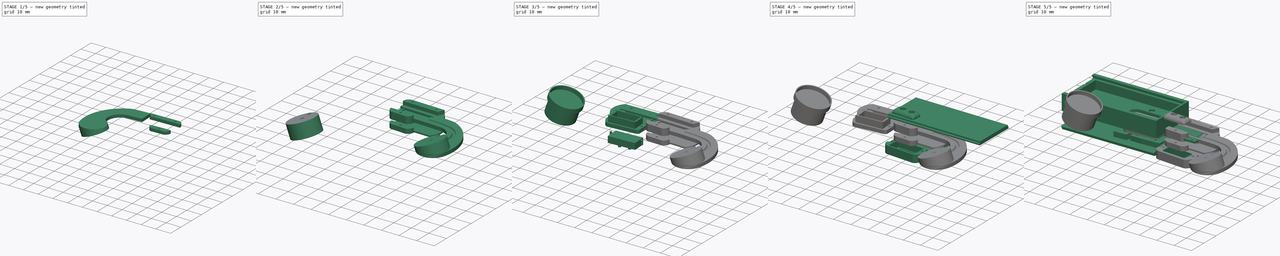
[diagram: build sequence overview — one tinted view per stage of 5, left to right]
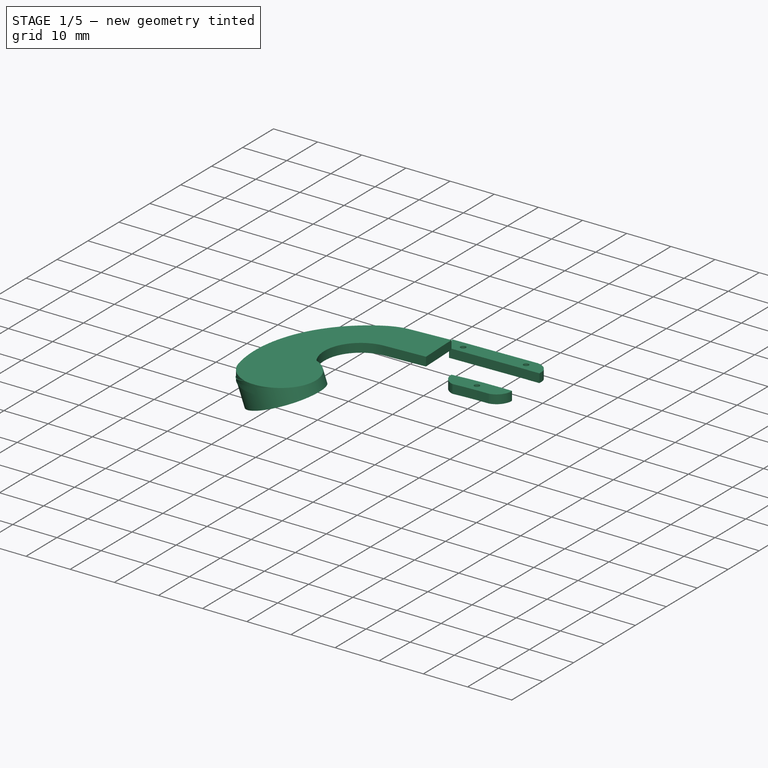
[diagram: stage 1 of 5 — iso view after this stage's code; geometry added in this stage tinted green]
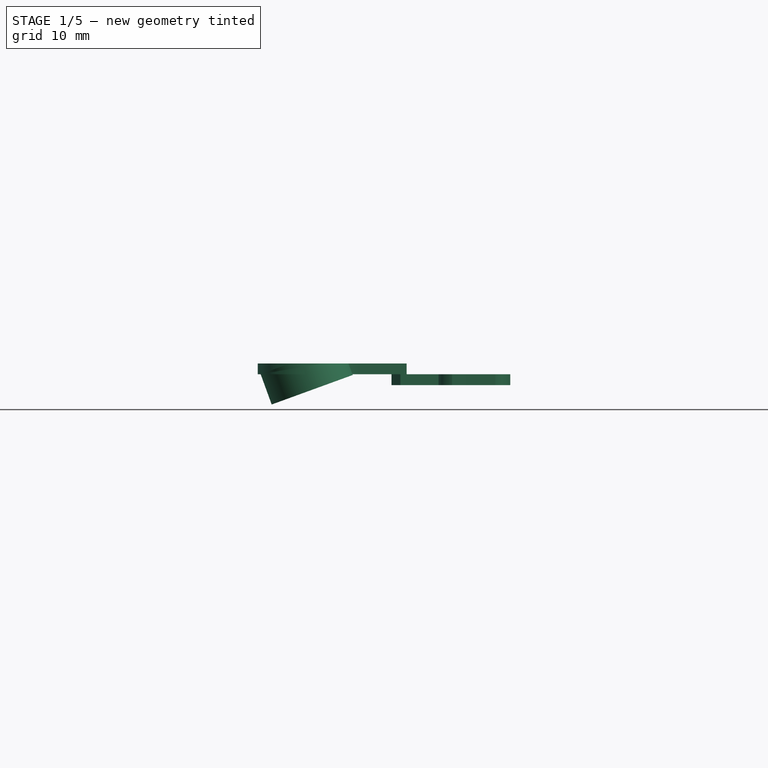
[diagram: stage 1 of 5 — front view after this stage's code; geometry added in this stage tinted green]
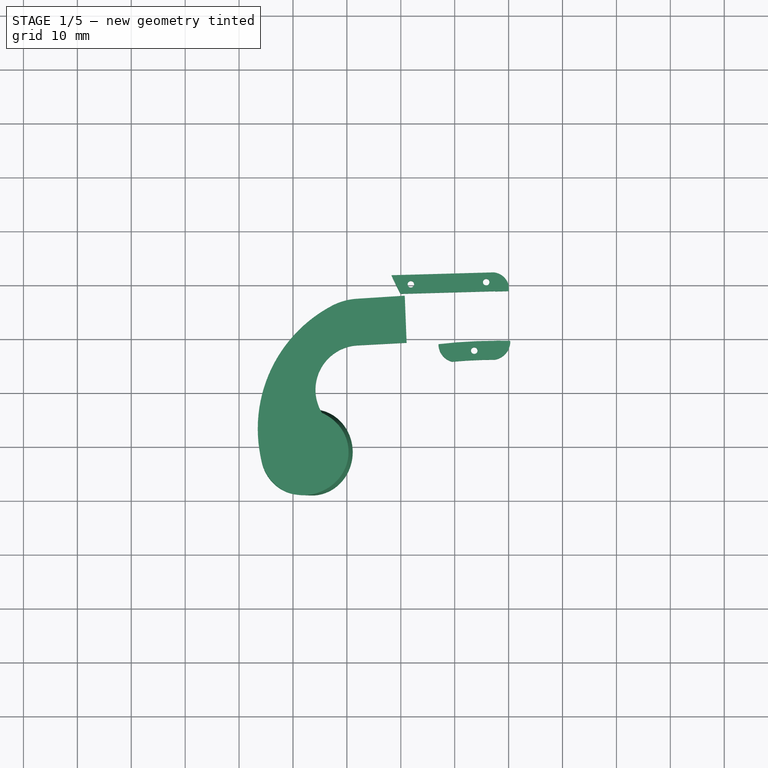
[diagram: stage 1 of 5 — top view after this stage's code; geometry added in this stage tinted green]
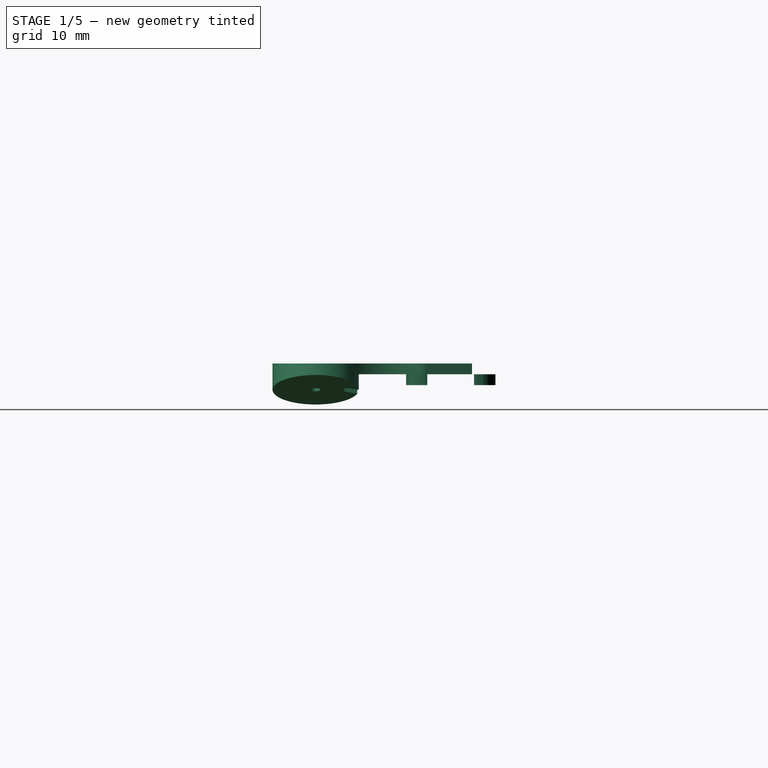
[diagram: stage 1 of 5 — right view after this stage's code; geometry added in this stage tinted green]
FCSTD DOCUMENT  (FreeCAD 0.14R3700 (Git))
Label: handle3
License: CC-BY 3.0
LicenseURL: http://creativecommons.org/licenses/by/3.0/
objects: Part::Extrusion×54, Sketcher::SketchObject×53, Part::Cut×20, Part::MultiFuse×19, Part::Mirroring×11, Part::Thickness×7, Part::MultiCommon×5, PartDesign::Pocket×5, PartDesign::Mirrored×3, PartDesign::Pad×3, Part::Box×2, Image::ImagePlane×1, PartDesign::Groove×1, PartDesign::Revolution×1, Part::Fillet×1, Part::Sweep×1, Part::FeaturePython×1, Part::Loft×1
note: 198 computed .brp shape members not serialized (recipe doc carries the construction recipe); baked Part::Feature solids carry a one-line shape summary decoded from their .brp

FEATURE [Sketcher::SketchObject] Sketch
  sketch-geometry (10):
    g0: ArcOfCircle CenterX=-23.5584 CenterY=-17.1092 CenterZ=0 NormalX=0 NormalY=0 NormalZ=1 Radius=4.06936 StartAngle=5.7382 EndAngle=6.9727
    g1: ArcOfCircle CenterX=-19.9974 CenterY=-14.1694 CenterZ=0 NormalX=0 NormalY=0 NormalZ=1 Radius=0.548408 StartAngle=1.59867 EndAngle=3.83622
    g2: ArcOfCircle CenterX=-19.6246 CenterY=-19.4253 CenterZ=0 NormalX=0 NormalY=0 NormalZ=1 Radius=0.498777 StartAngle=2.71461 EndAngle=4.89547
    g3: LineSegment [constr] StartX=-18.0034 StartY=-7.87611 StartZ=0 EndX=-4.00341 EndY=-7.87611 EndZ=0
    g4: LineSegment [constr] StartX=-4.00341 StartY=-7.87611 StartZ=0 EndX=-4.00341 EndY=-10.157 EndZ=0
    g5: LineSegment [constr] StartX=-4.00341 StartY=-10.157 StartZ=0 EndX=-18.0034 EndY=-10.157 EndZ=0
    g6: LineSegment [constr] StartX=-18.0034 StartY=-10.157 StartZ=0 EndX=-18.0034 EndY=-7.87611 EndZ=0
    g7: LineSegment StartX=-20.0126 StartY=-13.6212 StartZ=0 EndX=-2.50349 EndY=-13.1329 EndZ=0
    g8: ArcOfCircle CenterX=-2.26867 CenterY=-113.163 CenterZ=0 NormalX=0 NormalY=0 NormalZ=1 Radius=94.8319 StartAngle=1.57174 EndAngle=1.75388
    g9: LineSegment StartX=-2.50349 StartY=-13.1329 StartZ=0 EndX=-2.35854 EndY=-18.3309 EndZ=0
  constraints (19):
    c: Coincident(g1,g0)
    c: Coincident(g3,g4)
    c: Coincident(g4,g5)
    c: Coincident(g5,g6)
    c: Coincident(g6,g3)
    c: Horizontal(g3)
    c: Horizontal(g5)
    c: Vertical(g4)
    c: Vertical(g6)
    c: DistanceX(g3) = 14
    c: Coincident(g7,g1)
    c: Coincident(g8,g2)
    c: Tangent(g2,g8)
    c: Tangent(g1,g7)
    c: Coincident(g9,g7)
    c: Perpendicular(g9,g7)
    c: Coincident(g8,g9)
    c: Coincident(g0,g2)
    c: Distance(g9) = 5.2
FEATURE [Part::Extrusion] Extrude  label="inner"
  Base = -> Sketch
  Dir = (0,0,-0.6)
  Solid = true
FEATURE [Part::Extrusion] Extrude001
  Base = -> Sketch
  Dir = (0,0,-1.2)
  Solid = true
FEATURE [Sketcher::SketchObject] Sketch002
  ExternalGeometry = -> [Extrude]
  Placement = pos=(0,0,-0.6) rot=(1,0,0;3.14159rad)
  Support = -> Extrude [Face8]
  sketch-geometry (4):
    g0: LineSegment StartX=-17.4977 StartY=13.551 StartZ=0 EndX=-2.50349 EndY=13.1329 EndZ=0
    g1: LineSegment StartX=-2.50349 StartY=13.1329 StartZ=0 EndX=-2.33663 EndY=19.1165 EndZ=0
    g2: LineSegment StartX=-17.3308 StartY=19.5346 StartZ=0 EndX=-17.4977 EndY=13.551 EndZ=0
    g3: LineSegment StartX=-17.3308 StartY=19.5346 StartZ=0 EndX=-2.33663 EndY=19.1165 EndZ=0
  constraints (12):
    c: Parallel(g2,g1)
    c: Distance(g0) = 15
    c: Parallel(g1,g-4)
    c: PointOnObject(g-4,g1)
    c: Coincident(g1,g0)
    c: Coincident(g2,g0)
    c: PointOnObject(g0,g-5)
    c: PointOnObject(g2,g-3)
    c: Coincident(g0,g-5)
    c: Coincident(g3,g2)
    c: Coincident(g3,g1)
    c: Parallel(g3,g0)
FEATURE [Part::Extrusion] Extrude005  label="inner pocket"
  Base = -> Sketch002
  Dir = (0,0,1.2)
  Placement = pos=(0,0,-0.6) rot=(0,0,1;0rad)
  Solid = true
FEATURE [Sketcher::SketchObject] Sketch003
  sketch-geometry (4):
    g0: LineSegment StartX=-27.1728 StartY=-2.79504 StartZ=0 EndX=7.44391 EndY=-2.79504 EndZ=0
    g1: LineSegment StartX=7.44391 StartY=-2.79504 StartZ=0 EndX=7.44391 EndY=-34.2037 EndZ=0
    g2: LineSegment StartX=7.44391 StartY=-34.2037 StartZ=0 EndX=-27.1728 EndY=-34.2037 EndZ=0
    g3: LineSegment StartX=-27.1728 StartY=-34.2037 StartZ=0 EndX=-27.1728 EndY=-2.79504 EndZ=0
  constraints (8):
    c: Coincident(g0,g1)
    c: Coincident(g1,g2)
    c: Coincident(g2,g3)
    c: Coincident(g3,g0)
    c: Horizontal(g0)
    c: Horizontal(g2)
    c: Vertical(g1)
    c: Vertical(g3)
FEATURE [Part::Extrusion] Extrude006  label="bottom slice"
  Base = -> Sketch003
  Dir = (0,0,10)
  Placement = pos=(0,0,0.8) rot=(0,0,1;0rad)
  Solid = true
FEATURE [Sketcher::SketchObject] Sketch004
  sketch-geometry (4):
    g0: LineSegment StartX=-20.0656 StartY=-11.6219 StartZ=0 EndX=-2.55924 EndY=-11.1337 EndZ=0
    g1: LineSegment StartX=-2.55924 StartY=-11.1337 StartZ=0 EndX=-2.30277 EndY=-20.3308 EndZ=0
    g2: ArcOfCircle CenterX=-13.2216 CenterY=-16.2076 CenterZ=0 NormalX=0 NormalY=0 NormalZ=1 Radius=8.23828 StartAngle=2.55125 EndAngle=3.90264
    g3: ArcOfCircle CenterX=-2.24734 CenterY=-113.166 CenterZ=0 NormalX=0 NormalY=0 NormalZ=1 Radius=92.8355 StartAngle=1.57139 EndAngle=1.7543
  constraints (4):
    c: Coincident(g1,g0)
    c: Coincident(g3,g1)
    c: Coincident(g2,g3)
    c: Coincident(g2,g0)
FEATURE [Part::Extrusion] Extrude007
  Base = -> Sketch004
  Dir = (0,0,-1.2)
  Solid = true
FEATURE [Part::Thickness] Thickness003  label="outer shell"
  Faces = -> Extrude007 [Face6]
  Intersection = false
  Join = 2
  Mode = 0
  SelfIntersection = false
  Value = 3.5
FEATURE [Sketcher::SketchObject] Sketch005
  Placement = pos=(0,0,-1.2) rot=(1,0,0;3.14159rad)
  Support = -> Extrude001 [Face8]
  sketch-geometry (13):
    g0: ArcOfCircle CenterX=-9.64895 CenterY=20.9518 CenterZ=0 NormalX=0 NormalY=0 NormalZ=1 Radius=3.36439 StartAngle=1.54285 EndAngle=3.23068
    g1: LineSegment StartX=-25.398 StartY=28.0522 StartZ=0 EndX=-14.6984 EndY=27.4981 EndZ=0
    g2: LineSegment StartX=-14.6984 StartY=27.4981 StartZ=0 EndX=-9.55495 EndY=24.3148 EndZ=0
    g3: ArcOfCircle CenterX=-3.15606 CenterY=20.4205 CenterZ=0 NormalX=0 NormalY=0 NormalZ=1 Radius=3.47227 StartAngle=6.13597 EndAngle=7.90732
    g4: LineSegment StartX=-3.34117 StartY=23.8878 StartZ=0 EndX=0.787555 EndY=24.4276 EndZ=0
    g5: LineSegment StartX=0.787555 StartY=24.4276 StartZ=0 EndX=0.278644 EndY=19.9112 EndZ=0
    g6: ArcOfCircle CenterX=-3.0787 CenterY=10.8153 CenterZ=0 NormalX=0 NormalY=0 NormalZ=1 Radius=3.19224 StartAngle=4.70561 EndAngle=6.30676
    g7: LineSegment StartX=-3.10034 StartY=7.62308 StartZ=0 EndX=0.39301 EndY=6.96603 EndZ=0
    g8: LineSegment StartX=0.112661 StartY=10.8905 StartZ=0 EndX=0.39301 EndY=6.96603 EndZ=0
    g9: ArcOfCircle CenterX=-13.8483 CenterY=155.09 CenterZ=0 NormalX=0 NormalY=0 NormalZ=1 Radius=134.44 StartAngle=4.65401 EndAngle=4.7187
    g10: ArcOfCircle CenterX=-15.1608 CenterY=14.5384 CenterZ=0 NormalX=0 NormalY=0 NormalZ=1 Radius=9.10318 StartAngle=2.37108 EndAngle=3.94805
    g11: LineSegment StartX=-21.4607 StartY=7.96737 StartZ=0 EndX=-27.8424 EndY=7.96737 EndZ=0
    g12: LineSegment StartX=-27.8424 StartY=7.96737 StartZ=0 EndX=-25.398 EndY=28.0522 EndZ=0
  constraints (21):
    c: Coincident(g2,g1)
    c: Coincident(g0,g2)
    c: DistanceX(g0) = -13
    c: DistanceX(g3) = 0.278644
    c: DistanceY(g3) = 19.9112
    c: Coincident(g4,g3)
    c: Coincident(g5,g4)
    c: Coincident(g5,g3)
    c: Coincident(g7,g6)
    c: Coincident(g8,g6)
    c: Coincident(g8,g7)
    c: Coincident(g0,g9)
    c: DistanceX(g6) = 0.112661
    c: DistanceY(g6) = 10.8905
    c: DistanceX(g10) = -21.6928
    c: DistanceY(g10) = 20.8788
    c: Coincident(g9,g10)
    c: Coincident(g11,g10)
    c: Horizontal(g11)
    c: Coincident(g12,g11)
    c: Coincident(g12,g1)
FEATURE [Part::Extrusion] Extrude009
  Base = -> Sketch005
  Dir = (0,0,-10)
  Placement = pos=(0,0,3) rot=(0,0,1;0rad)
  Solid = true
FEATURE [Sketcher::SketchObject] Sketch006
  ExternalGeometry = -> [Extrude]
  Placement = pos=(0,0,-0.6) rot=(1,0,0;3.14159rad)
  Support = -> Extrude [Face8]
  sketch-geometry (4):
    g0: LineSegment StartX=-1.61201 StartY=19.0805 StartZ=0 EndX=0.37909 EndY=19.0249 EndZ=0
    g1: LineSegment StartX=0.37909 StartY=19.0249 StartZ=0 EndX=0.246379 EndY=13.0443 EndZ=0
    g2: LineSegment StartX=0.246379 StartY=13.0443 StartZ=0 EndX=-1.77876 EndY=13.1007 EndZ=0
    g3: LineSegment StartX=-1.77876 StartY=13.1007 StartZ=0 EndX=-1.61201 EndY=19.0805 EndZ=0
  constraints (7):
    c: Coincident(g0,g1)
    c: Coincident(g1,g2)
    c: Coincident(g3,g2)
    c: Parallel(g2,g-4)
    c: Coincident(g0,g3)
    c: Parallel(g3,g-3)
    c: Parallel(g0,g2)
FEATURE [Part::Extrusion] Extrude010
  Base = -> Sketch006
  Dir = (0,0,2.3)
  Placement = pos=(0,0,-1.7) rot=(0,0,1;0rad)
  Solid = true
FEATURE [Sketcher::SketchObject] Sketch007
  ExternalGeometry = -> [Thickness003]
  Placement = pos=(0,0,-1.2) rot=(1,0,0;3.14159rad)
  Support = -> Thickness003 [Face6]
  sketch-geometry (4):
    g0: LineSegment StartX=-2.33691 StartY=19.1066 StartZ=0 EndX=-1.33729 EndY=19.0787 EndZ=0
    g1: LineSegment StartX=-1.33729 StartY=19.0787 StartZ=0 EndX=-1.50396 EndY=13.1022 EndZ=0
    g2: LineSegment StartX=-1.50396 StartY=13.1022 StartZ=0 EndX=-2.50357 EndY=13.13 EndZ=0
    g3: LineSegment StartX=-2.33691 StartY=19.1066 StartZ=0 EndX=-2.50357 EndY=13.13 EndZ=0
  constraints (10):
    c: Coincident(g0,g1)
    c: Coincident(g1,g2)
    c: Parallel(g2,g-3)
    c: Parallel(g0,g2)
    c: PointOnObject(g0,g-4)
    c: PointOnObject(g2,g-4)
    c: Coincident(g3,g0)
    c: Coincident(g3,g2)
    c: Distance(g0) = 1
    c: Equal(g2,g0)
FEATURE [Part::Extrusion] Extrude011
  Base = -> Sketch007
  Dir = (0,0,0.6)
  Solid = true
FEATURE [Part::MultiFuse] Fusion
  Shapes = -> [Extrude010,Extrude009,Extrude011]
FEATURE [Part::Cut] Cut  label="outer"
  Base = -> Thickness003
  Tool = -> Fusion
FEATURE [Sketcher::SketchObject] Sketch008
  ExternalGeometry = -> [Extrude]
  Support = -> Extrude [Face7]
  sketch-geometry (4):
    g0: LineSegment StartX=-0.227081 StartY=-1.77747 StartZ=0 EndX=0.609359 EndY=-31.7721 EndZ=0
    g1: LineSegment StartX=0.609359 StartY=-31.7721 StartZ=0 EndX=10.5804 EndY=-31.2053 EndZ=0
    g2: LineSegment StartX=10.5804 StartY=-31.2053 StartZ=0 EndX=9.73972 EndY=-1.05999 EndZ=0
    g3: LineSegment StartX=9.73972 StartY=-1.05999 StartZ=0 EndX=-0.227081 EndY=-1.77747 EndZ=0
  constraints (6):
    c: Coincident(g0,g1)
    c: Coincident(g1,g2)
    c: Coincident(g2,g3)
    c: Coincident(g3,g0)
    c: Parallel(g2,g0)
    c: Parallel(g0,g-3)
FEATURE [Part::Extrusion] Extrude012  label="right slice"
  Base = -> Sketch008
  Dir = (0,0,-10)
  Placement = pos=(0,0,5) rot=(0,0,1;0rad)
  Solid = true
FEATURE [Part::Extrusion] Extrude019
  Base = -> Sketch004
  Dir = (0,0,-1.2)
  Solid = true
FEATURE [Part::Thickness] Thickness  label="middle shell"
  Faces = -> Extrude001 [Face8]
  Intersection = false
  Join = 2
  Mode = 0
  SelfIntersection = false
  Value = 3
FEATURE [Part::MultiCommon] Common  label="middle"
  Shapes = -> [Thickness,Extrude019]
FEATURE [Part::MultiFuse] Fusion027  label="bodyIII"
  Shapes = -> [Extrude,Cut,Common]
FEATURE [Sketcher::SketchObject] Sketch051
  Placement = pos=(0,0,-6) rot=(1,0,0;3.14159rad)
  sketch-geometry (3):
    g0: Circle CenterX=-6.37416 CenterY=22.1619 CenterZ=0 NormalX=0 NormalY=0 NormalZ=1 Radius=0.6
    g1: Circle CenterX=-4.15932 CenterY=9.4492 CenterZ=0 NormalX=0 NormalY=0 NormalZ=1 Radius=0.6
    g2: Circle CenterX=-18.1324 CenterY=9.84435 CenterZ=0 NormalX=0 NormalY=0 NormalZ=1 Radius=0.6
  constraints (2):
    c: Equal(g0,g1)
    c: Equal(g2,g1)
FEATURE [Part::Extrusion] Extrude062  label="holes001"
  Base = -> Sketch051
  Dir = (0,0,8.5)
  Placement = pos=(0,0,-2.7) rot=(0,0,1;0rad)
  Solid = true
FEATURE [Sketcher::SketchObject] Sketch052
  Placement = pos=(0,0,-1.2) rot=(1,0,0;3.14159rad)
  Support = -> Extrude007 [Face6]
  sketch-geometry (8):
    g0: ArcOfCircle CenterX=-38 CenterY=41 CenterZ=0 NormalX=0 NormalY=0 NormalZ=1 Radius=8 StartAngle=5.14863 EndAngle=9.17913
    g1: LineSegment StartX=-19.2652 StartY=12 StartZ=0 EndX=-18.9214 EndY=20.7298 EndZ=0
    g2: LineSegment [constr] StartX=-45.7598 StartY=42.9454 StartZ=0 EndX=-34.6197 EndY=33.7492 EndZ=0
    g3: LineSegment StartX=-19.2652 StartY=12 StartZ=0 EndX=-28.1613 EndY=12.567 EndZ=0
    g4: LineSegment StartX=-18.9214 StartY=20.7298 StartZ=0 EndX=-28.0179 EndY=21.2133 EndZ=0
    g5: ArcOfCircle CenterX=-27.5801 CenterY=29.4502 CenterZ=0 NormalX=0 NormalY=0 NormalZ=1 Radius=8.24853 StartAngle=2.59336 EndAngle=4.65928
    g6: ArcOfCircle CenterX=-27.4303 CenterY=24.0364 CenterZ=0 NormalX=0 NormalY=0 NormalZ=1 Radius=11.4927 StartAngle=4.22576 EndAngle=4.64874
    g7: ArcOfCircle CenterX=-20.7442 CenterY=36.6739 CenterZ=0 NormalX=0 NormalY=0 NormalZ=1 Radius=25.7899 StartAngle=2.89595 EndAngle=4.22576
  constraints (20):
    c: Radius(g0) = 8
    c: PointOnObject(g2,g0)
    c: PointOnObject(g2,g0)
    c: PointOnObject(g0,g2)
    c: PointOnObject(g0,g2)
    c: DistanceX(g0) = -38
    c: DistanceY(g0) = 41
    c: DistanceX(g1) = -19.2652
    c: DistanceY(g1) = 12
    c: Coincident(g3,g1)
    c: Coincident(g4,g1)
    c: Coincident(g5,g0)
    c: Coincident(g5,g4)
    c: Coincident(g6,g3)
    c: Tangent(g6,g3)
    c: Coincident(g7,g6)
    c: Coincident(g7,g0)
    c: Tangent(g7,g0)
    c: Tangent(g7,g6)
    c: Tangent(g5,g4)
FEATURE [Part::Extrusion] Extrude063  label="earpad"
  Base = -> Sketch052
  Dir = (0,0,2)
  Solid = true
FEATURE [Sketcher::SketchObject] Sketch055
  ExternalGeometry = -> [Extrude063]
  Placement = pos=(0,0,-1.2) rot=(1,0,0;3.14159rad)
  Support = -> Extrude063 [Face8]
  sketch-geometry (5):
    g0: ArcOfCircle CenterX=-38 CenterY=41 CenterZ=0 NormalX=0 NormalY=0 NormalZ=1 Radius=8 StartAngle=4.70688 EndAngle=10.7289
    g1: Circle CenterX=-38 CenterY=41 CenterZ=0 NormalX=0 NormalY=0 NormalZ=1 Radius=0.9
    g2: ArcOfCircle CenterX=-38.1527 CenterY=35.0901 CenterZ=0 NormalX=0 NormalY=0 NormalZ=1 Radius=1 StartAngle=5.73441 EndAngle=9.11477
    g3: LineSegment StartX=-39.105 StartY=35.3951 StartZ=0 EndX=-40.1079 EndY=33.2827 EndZ=0
    g4: LineSegment StartX=-38.0441 StartY=33.0001 StartZ=0 EndX=-37.2995 EndY=34.5684 EndZ=0
  constraints (10):
    c: Parallel(g4,g3)
    c: Radius(g2) = 1
    c: Coincident(g2,g4)
    c: Coincident(g2,g3)
    c: Coincident(g0,g4)
    c: Coincident(g0,g3)
    c: Coincident(g0,g-3)
    c: Coincident(g1,g0)
    c: Radius(g1) = 0.9
    c: Radius(g0) = 8
FEATURE [Part::Extrusion] Extrude064  label="earpadHolder"
  Base = -> Sketch055
  Dir = (0,0,-6)
  Placement = pos=(-3.19059,0,15.6948) rot=(0,-1,0;0.349066rad)
  Solid = true
FEATURE [Part::Box] Box001  label="Cube001"
  Height = 10
  Length = 29
  Placement = pos=(-45,-52,0.8) rot=(0,0,1;0rad)
  Width = 19
FEATURE [Part::MultiFuse] Fusion030  label="earpad001"
  Shapes = -> [Extrude063,Extrude064]
FEATURE [Sketcher::SketchObject] Sketch056
  Placement = pos=(-19.7074,-0.776335,0) rot=(0.562197,0.58478,0.58478;2.11727rad)
  Support = -> Extrude063 [Face1]
  sketch-geometry (2):
    g0: Circle CenterX=-17.4296 CenterY=-1.2 CenterZ=0 NormalX=0 NormalY=0 NormalZ=1 Radius=1
    g1: LineSegment [constr] StartX=-41.4988 StartY=-13.3509 StartZ=0 EndX=-41.4988 EndY=-29.4389 EndZ=0
  constraints (1):
    c: Radius(g0) = 1
FEATURE [Part::Cut] Cut026  label="earpad002"
  Base = -> Fusion030
  Tool = -> Box001
FEATURE [Sketcher::SketchObject] Sketch067
  Placement = pos=(0,0,-1.2) rot=(1,0,0;3.14159rad)
  Support = -> Cut026 [Face4]
  sketch-geometry (2):
    g0: ArcOfCircle CenterX=-28.8556 CenterY=29.3828 CenterZ=0 NormalX=0 NormalY=0 NormalZ=1 Radius=10.9262 StartAngle=2.5295 EndAngle=4.50331
    g1: ArcOfCircle CenterX=-21.3464 CenterY=64.7732 CenterZ=0 NormalX=0 NormalY=0 NormalZ=1 Radius=47.1045 StartAngle=4.50331 EndAngle=4.75361
  constraints (4):
    c: Coincident(g1,g0)
    c: Tangent(g1,g0)
    c: DistanceX(g0) = -31.1234
    c: DistanceY(g0) = 18.6946
FEATURE [Sketcher::SketchObject] Sketch068
  Placement = pos=(0,0,-1.2) rot=(1,0,0;3.14159rad)
  Support = -> Thickness003 [Face6]
  sketch-geometry (11):
    g0: LineSegment StartX=-13.0187 StartY=25.1095 StartZ=0 EndX=-13.0187 EndY=16.763 EndZ=0
    g1: LineSegment StartX=-13.0187 StartY=16.763 StartZ=0 EndX=-19.8457 EndY=16.763 EndZ=0
    g2: LineSegment StartX=-19.8457 StartY=16.763 StartZ=0 EndX=-19.9644 EndY=11.8557 EndZ=0
    g3: LineSegment StartX=-19.9644 StartY=11.8557 StartZ=0 EndX=-22.4086 EndY=6.85652 EndZ=0
    g4: LineSegment StartX=-13.0187 StartY=25.1095 StartZ=0 EndX=1.47037 EndY=24.0363 EndZ=0
    g5: LineSegment StartX=1.47037 StartY=24.0363 StartZ=0 EndX=1.47037 EndY=20.3551 EndZ=0
    g6: LineSegment StartX=-2.54298 StartY=20.3009 StartZ=0 EndX=1.47037 EndY=20.3551 EndZ=0
    g7: LineSegment StartX=-2.54298 StartY=20.3009 StartZ=0 EndX=-2.67006 EndY=11.1828 EndZ=0
    g8: LineSegment StartX=-2.67006 StartY=11.1828 StartZ=0 EndX=1.28904 EndY=11.0743 EndZ=0
    g9: LineSegment StartX=-22.4086 StartY=6.85652 StartZ=0 EndX=0.030873 EndY=6.85652 EndZ=0
    g10: LineSegment StartX=1.28904 StartY=11.0743 StartZ=0 EndX=0.030873 EndY=6.85652 EndZ=0
  constraints (17):
    c: Vertical(g0)
    c: Horizontal(g1)
    c: Coincident(g0,g1)
    c: Coincident(g1,g2)
    c: Coincident(g3,g2)
    c: Coincident(g4,g0)
    c: Coincident(g5,g4)
    c: Vertical(g5)
    c: Coincident(g6,g5)
    c: Coincident(g7,g6)
    c: Coincident(g8,g7)
    c: Coincident(g9,g3)
    c: Horizontal(g9)
    c: Coincident(g10,g8)
    c: Coincident(g10,g9)
    c: DistanceX(g2) = -19.9644
    c: DistanceY(g2) = 11.8557
FEATURE [Part::Extrusion] Extrude068
  Base = -> Sketch068
  Dir = (0,0,-2)
  Solid = true
FEATURE [Part::MultiFuse] Fusion036
  Shapes = -> [Extrude062,Extrude005,Extrude006,Extrude012,Extrude009]
FEATURE [Part::Cut] Cut034  label="bodyIII006"
  Base = -> Fusion027
  Tool = -> Fusion036
FEATURE [Part::FeaturePython] Facebinder  # WARN: FeaturePython — macro-defined, semantics opaque (R4)
  Faces = -> [Cut034]
FEATURE [Part::Extrusion] Extrude072
  Base = -> Facebinder
  Dir = (0,0,-3)
  Solid = true
FEATURE [Part::MultiCommon] Common004  label="bodyExtra"
  Shapes = -> [Extrude072,Extrude068]
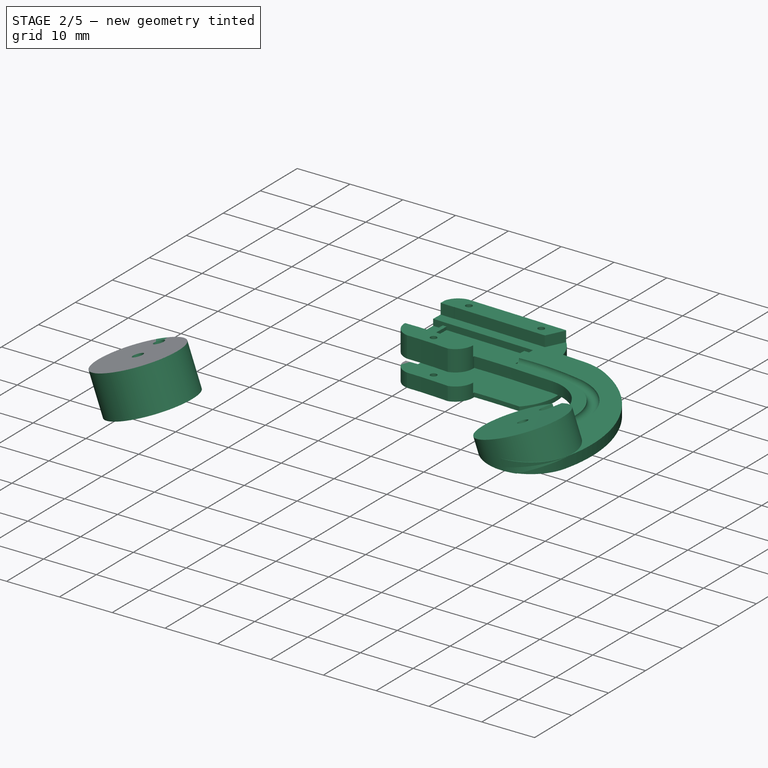
[diagram: stage 2 of 5 — iso view after this stage's code; geometry added in this stage tinted green]
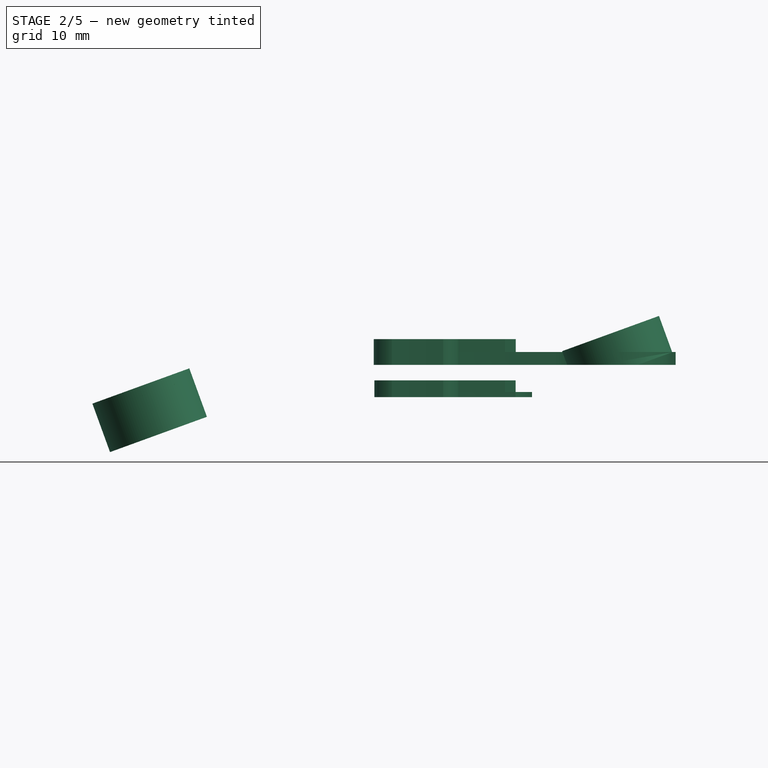
[diagram: stage 2 of 5 — front view after this stage's code; geometry added in this stage tinted green]
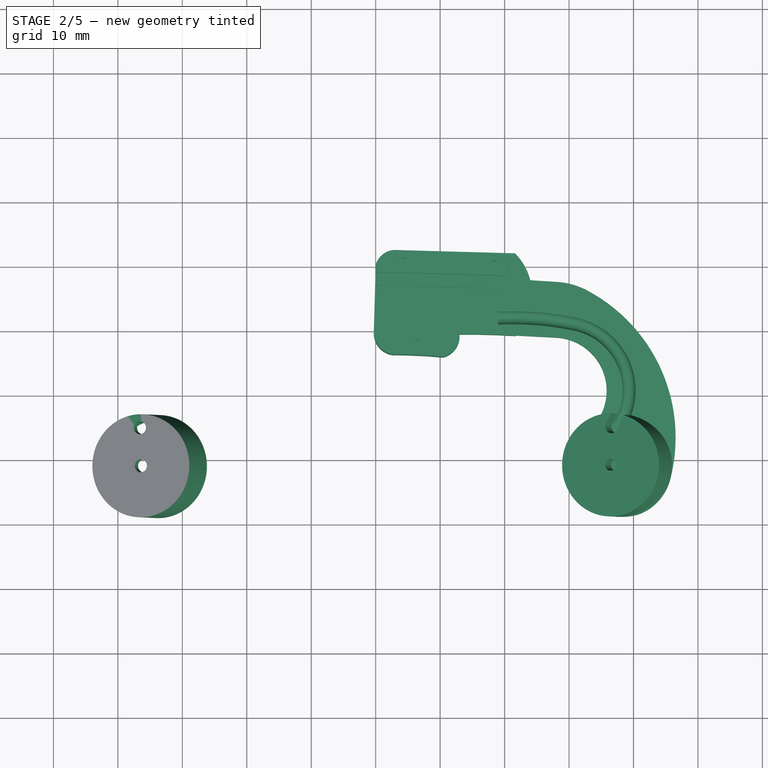
[diagram: stage 2 of 5 — top view after this stage's code; geometry added in this stage tinted green]
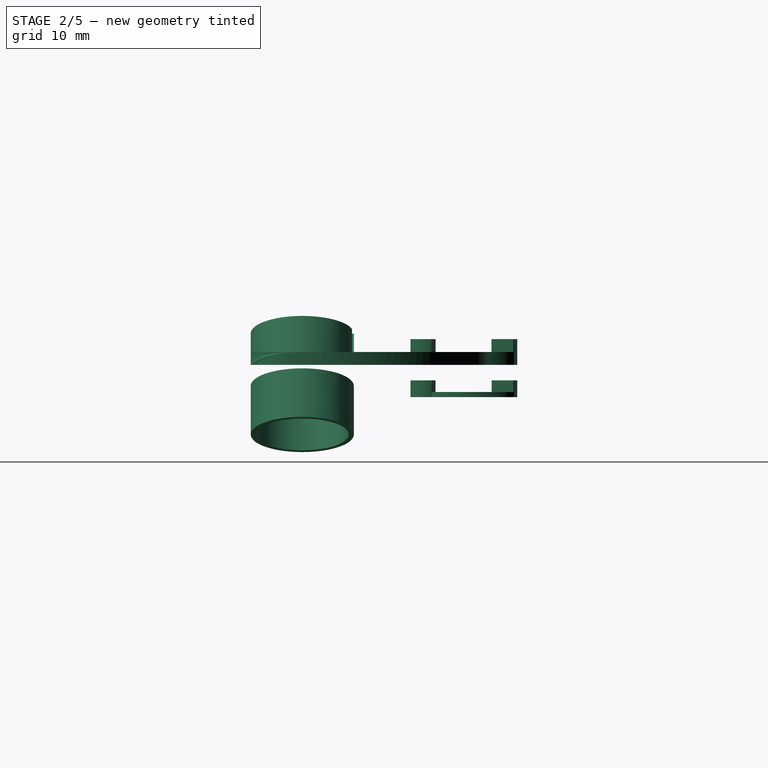
[diagram: stage 2 of 5 — right view after this stage's code; geometry added in this stage tinted green]
FEATURE [Part::Extrusion] Extrude033
  Base = -> Sketch004
  Dir = (0,0,3.8)
  Placement = pos=(0,0,-10) rot=(0,0,1;0rad)
  Solid = true
FEATURE [Part::Thickness] Thickness008
  Faces = -> Extrude033 [Face6,Face2]
  Intersection = false
  Join = 2
  Mode = 0
  SelfIntersection = false
  Value = 3.5
FEATURE [Part::Extrusion] Extrude035
  Base = -> Sketch014
  Dir = (0,0,4.8)
  Placement = pos=(0,0,-10) rot=(0,0,1;0rad)
  Solid = true
FEATURE [Part::Thickness] Thickness009
  Faces = -> Extrude035 [Face7,Face2,Face5]
  Intersection = false
  Join = 2
  Mode = 0
  SelfIntersection = false
  Value = 3.5
FEATURE [Sketcher::SketchObject] Sketch037
  Placement = pos=(0,0,-5.2) rot=(0,0,1;0rad)
  Support = -> Thickness009 [Face5]
  sketch-geometry (4):
    g0: LineSegment StartX=-2.73887 StartY=-4.6924 StartZ=0 EndX=0.89023 EndY=-4.06738 EndZ=0
    g1: LineSegment StartX=0.89023 StartY=-4.06738 StartZ=0 EndX=1.6756 EndY=-25.8554 EndZ=0
    g2: LineSegment StartX=1.6756 StartY=-25.8554 StartZ=0 EndX=-2.1376 EndY=-26.2535 EndZ=0
    g3: LineSegment StartX=-2.1376 StartY=-26.2535 StartZ=0 EndX=-2.73887 EndY=-4.6924 EndZ=0
  constraints (2):
    c: Coincident(g0,g1)
    c: Coincident(g1,g2)
FEATURE [Part::Extrusion] Extrude041
  Base = -> Sketch037
  Dir = (0,0,-1)
  Solid = true
FEATURE [Sketcher::SketchObject] Sketch041
  Placement = pos=(0,0,-6.2) rot=(0,0,1;0rad)
  sketch-geometry (6):
    g0: LineSegment StartX=-28.8627 StartY=-4.11158 StartZ=0 EndX=-22.0291 EndY=-7.58259 EndZ=0
    g1: LineSegment StartX=-22.0291 StartY=-7.58259 StartZ=0 EndX=-20.0656 EndY=-11.6219 EndZ=0
    g2: LineSegment StartX=-20.0656 StartY=-11.6219 StartZ=0 EndX=-19.1871 EndY=-21.8894 EndZ=0
    g3: LineSegment StartX=-19.1871 StartY=-21.8894 StartZ=0 EndX=-20.8368 EndY=-27.8902 EndZ=0
    g4: LineSegment StartX=-20.8368 StartY=-27.8902 StartZ=0 EndX=-25.8679 EndY=-28.2962 EndZ=0
    g5: LineSegment StartX=-25.8679 StartY=-28.2962 StartZ=0 EndX=-28.8627 EndY=-4.11158 EndZ=0
  constraints (6):
    c: Coincident(g0,g1)
    c: Coincident(g1,g2)
    c: Coincident(g2,g3)
    c: Coincident(g3,g4)
    c: Coincident(g4,g5)
    c: Coincident(g5,g0)
FEATURE [Part::Extrusion] Extrude050
  Base = -> Sketch041
  Dir = (0,0,-3.8)
  Solid = true
FEATURE [Sketcher::SketchObject] Sketch042
  ExternalGeometry = -> [Thickness009]
  Placement = pos=(18.2405,0,0) rot=(0.57735,0.57735,0.57735;2.0944rad)
  Support = -> Thickness009 [Face8]
  sketch-geometry (4):
    g0: LineSegment StartX=-37.9697 StartY=-10.6 StartZ=0 EndX=10.9294 EndY=-10.6 EndZ=0
    g1: LineSegment StartX=10.9294 StartY=-10.6 StartZ=0 EndX=10.9294 EndY=-16.8324 EndZ=0
    g2: LineSegment StartX=10.9294 StartY=-16.8324 StartZ=0 EndX=-37.9697 EndY=-16.8324 EndZ=0
    g3: LineSegment StartX=-37.9697 StartY=-16.8324 StartZ=0 EndX=-37.9697 EndY=-10.6 EndZ=0
  constraints (9):
    c: Coincident(g0,g1)
    c: Coincident(g1,g2)
    c: Coincident(g2,g3)
    c: Coincident(g3,g0)
    c: Horizontal(g0)
    c: Horizontal(g2)
    c: Vertical(g1)
    c: Vertical(g3)
    c: Distance(g0,g-3) = 0.6
FEATURE [Part::Extrusion] Extrude052
  Base = -> Sketch042
  Dir = (-60,0,0)
  Placement = pos=(0,0,-0.2) rot=(0,0,1;0rad)
  Solid = true
FEATURE [Sketcher::SketchObject] Sketch045
  Placement = pos=(0,0,-5.2) rot=(0,0,1;0rad)
  Support = -> Thickness009 [Face5]
  sketch-geometry (4):
    g0: LineSegment StartX=21.413 StartY=-4.72855 StartZ=0 EndX=-0.184001 EndY=-4.73304 EndZ=0
    g1: LineSegment StartX=-0.184001 StartY=-4.73304 StartZ=0 EndX=0.29509 EndY=-25.1288 EndZ=0
    g2: LineSegment StartX=0.29509 StartY=-25.1288 StartZ=0 EndX=22.0442 EndY=-26.8193 EndZ=0
    g3: LineSegment StartX=22.0442 StartY=-26.8193 StartZ=0 EndX=21.413 EndY=-4.72855 EndZ=0
  constraints (4):
    c: Coincident(g2,g3)
    c: Coincident(g0,g3)
    c: Coincident(g2,g1)
    c: Coincident(g0,g1)
FEATURE [Part::Extrusion] Extrude054
  Base = -> Sketch045
  Dir = (0,0,-10)
  Solid = true
FEATURE [Part::MultiFuse] Fusion032  label="backIII"
  Shapes = -> [Thickness008,Thickness009]
FEATURE [Sketcher::SketchObject] Sketch060
  Placement = pos=(-0.728045,0,8.92901) rot=(0.984808,0,0.173648;3.14159rad)
  Support = -> Extrude064 [Face7]
  sketch-geometry (4):
    g0: LineSegment StartX=-57.2378 StartY=55.5842 StartZ=0 EndX=-11.3635 EndY=55.5842 EndZ=0
    g1: LineSegment StartX=-11.3635 StartY=55.5842 StartZ=0 EndX=-11.3635 EndY=28.1635 EndZ=0
    g2: LineSegment StartX=-11.3635 StartY=28.1635 StartZ=0 EndX=-57.2378 EndY=28.1635 EndZ=0
    g3: LineSegment StartX=-57.2378 StartY=28.1635 StartZ=0 EndX=-57.2378 EndY=55.5842 EndZ=0
  constraints (8):
    c: Coincident(g0,g1)
    c: Coincident(g1,g2)
    c: Coincident(g2,g3)
    c: Coincident(g3,g0)
    c: Horizontal(g0)
    c: Horizontal(g2)
    c: Vertical(g1)
    c: Vertical(g3)
FEATURE [Part::Extrusion] Extrude065
  Base = -> Sketch060
  Dir = (0,0,-10)
  Solid = true
FEATURE [Part::MultiFuse] Fusion033
  Shapes = -> [Extrude041,Extrude052,Extrude050,Extrude054]
FEATURE [Part::Cut] Cut031  label="backIII001"
  Base = -> Fusion032
  Placement = pos=(0,0,5) rot=(0,0,1;0rad)
  Tool = -> Fusion033
FEATURE [Part::MultiFuse] Fusion034
  Shapes = -> [Extrude062,Extrude009,Extrude068]
FEATURE [Part::Cut] Cut032  label="backIII002"
  Base = -> Cut031
  Tool = -> Fusion034
FEATURE [Sketcher::SketchObject] Sketch069
  ExternalGeometry = -> [Cut032]
  Placement = pos=(0,0,-5.8) rot=(1,0,0;3.14159rad)
  Support = -> Cut032 [Face18]
  sketch-geometry (3):
    g0: Circle CenterX=-6.37416 CenterY=22.1619 CenterZ=0 NormalX=0 NormalY=0 NormalZ=1 Radius=1.2
    g1: Circle CenterX=-18.1324 CenterY=9.84435 CenterZ=0 NormalX=0 NormalY=0 NormalZ=1 Radius=1.2
    g2: Circle CenterX=-4.15932 CenterY=9.4492 CenterZ=0 NormalX=0 NormalY=0 NormalZ=1 Radius=1.2
  constraints (6):
    c: Coincident(g-3,g0)
    c: Coincident(g-4,g1)
    c: Coincident(g2,g-5)
    c: Radius(g0) = 1.2
    c: Equal(g2,g1)
    c: Equal(g1,g0)
FEATURE [Part::Extrusion] Extrude071
  Base = -> Sketch069
  Dir = (0,0,1.1)
  Solid = true
FEATURE [Part::Cut] Cut033  label="backIII003"
  Base = -> Cut032
  Tool = -> Extrude071
FEATURE [Part::Mirroring] Part__Mirroring012  label="backIII003 (Mirror #9)"
  Base = (0,0,0)
  Normal = (1,0,0)
  Source = -> Cut033
FEATURE [Part::MultiFuse] Fusion037  label="bodyIII007"
  Shapes = -> [Cut034,Cut026]
FEATURE [Part::Sweep] Sweep
  Frenet = false
  Sections = -> [Sketch056]
  Solid = true
  Spine = -> Sketch067 [Edge2,Edge1]
  Transition = 1
FEATURE [Part::Cut] Cut035  label="bodyIII008"
  Base = -> Fusion037
  Tool = -> Sweep
FEATURE [Part::MultiFuse] Fusion038  label="bodyIII009"
  Shapes = -> [Cut035,Common004]
FEATURE [Sketcher::SketchObject] Sketch057
  ExternalGeometry = -> [Fusion038]
  Placement = pos=(-2.95489,0,8.11851) rot=(0.984808,0,0.173648;3.14159rad)
  Support = -> Fusion038 [Face99]
  sketch-geometry (3):
    g0: Circle CenterX=-35.6302 CenterY=41 CenterZ=0 NormalX=0 NormalY=0 NormalZ=1 Radius=8
    g1: Circle CenterX=-35.7829 CenterY=35.0901 CenterZ=0 NormalX=0 NormalY=0 NormalZ=1 Radius=1
    g2: Circle CenterX=-35.6302 CenterY=41 CenterZ=0 NormalX=0 NormalY=0 NormalZ=1 Radius=1
  constraints (1):
    c: Coincident(g1,g-3)
FEATURE [PartDesign::Pad] Pad001  label="bodyIII004"
  Length = 8
  Length2 = 100
  Sketch = -> Sketch057
  Type = 0
FEATURE [Sketcher::SketchObject] Sketch061
  Placement = pos=(-0.218733,0,0.600965) rot=(0.984808,0,0.173648;3.14159rad)
  Support = -> Pad001 [Face1]
  sketch-geometry (1):
    g0: Circle CenterX=-35.6302 CenterY=41 CenterZ=0 NormalX=0 NormalY=0 NormalZ=1 Radius=7.2
FEATURE [PartDesign::Pocket] Pocket003  label="bodyIII005"
  Length = 6.5
  Sketch = -> Sketch061
  Type = 0
FEATURE [Part::MultiCommon] Common002  label="earpadHolder001"
  Shapes = -> [Extrude065,Pocket003]
FEATURE [Part::Mirroring] Part__Mirroring013  label="bodyIII009 (Mirror #10)"
  Base = (0,0,0)
  Normal = (0,0,1)
  Source = -> Fusion038
FEATURE [Part::Mirroring] Part__Mirroring014  label="bodyIII009 (Mirror #11)"
  Base = (0,0,0)
  Normal = (1,0,0)
  Source = -> Part__Mirroring013
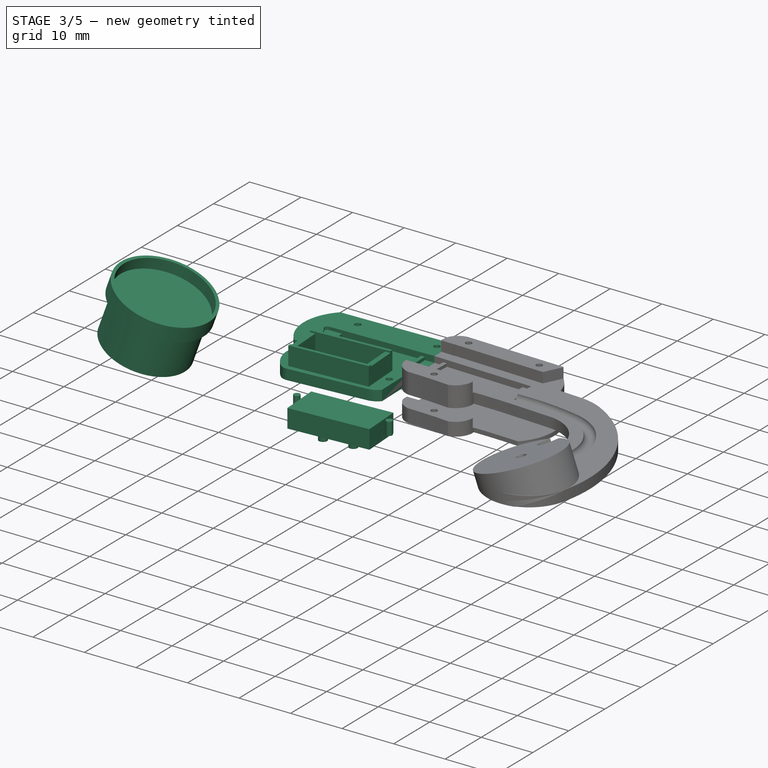
[diagram: stage 3 of 5 — iso view after this stage's code; geometry added in this stage tinted green]
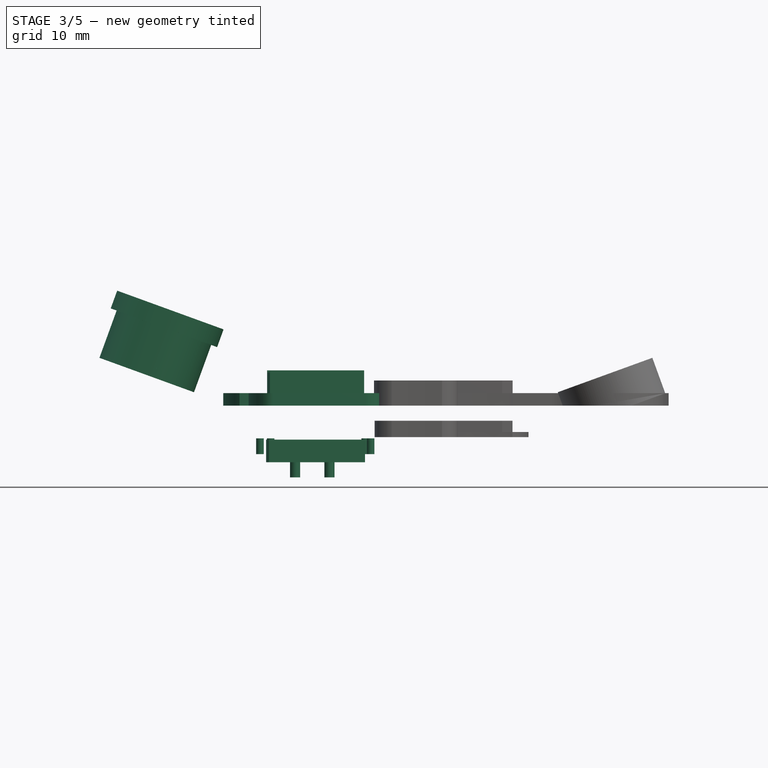
[diagram: stage 3 of 5 — front view after this stage's code; geometry added in this stage tinted green]
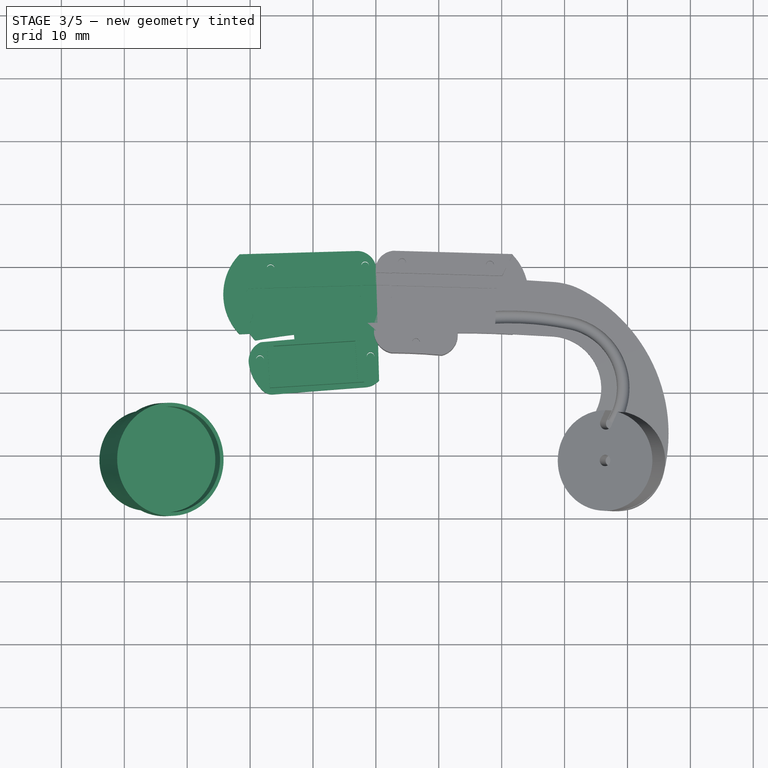
[diagram: stage 3 of 5 — top view after this stage's code; geometry added in this stage tinted green]
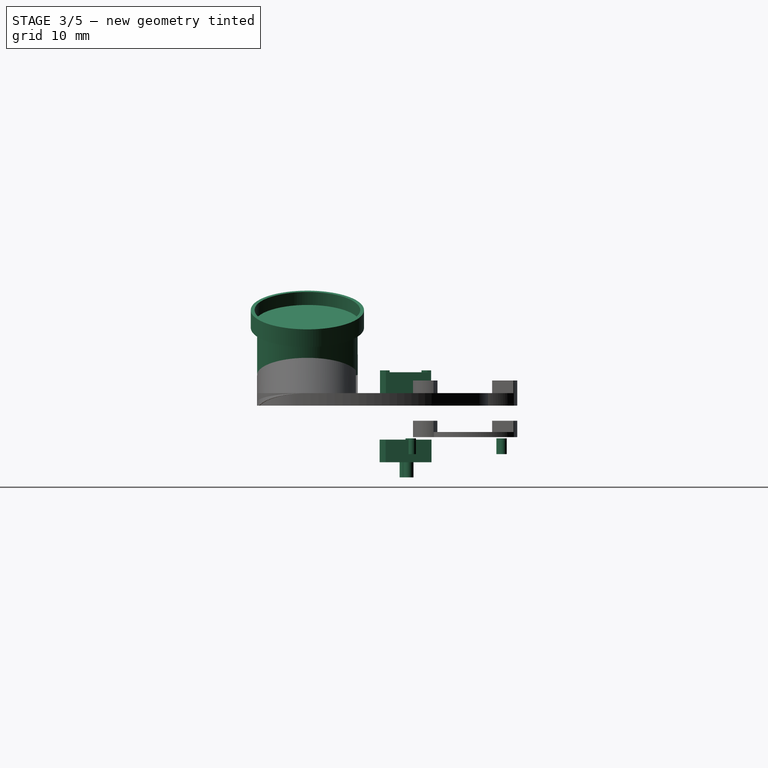
[diagram: stage 3 of 5 — right view after this stage's code; geometry added in this stage tinted green]
FEATURE [Sketcher::SketchObject] Sketch012
  ExternalGeometry = -> [Thickness003]
  Placement = pos=(0,0,-1.2) rot=(1,0,0;3.14159rad)
  Support = -> Thickness003 [Face6]
  sketch-geometry (7):
    g0: LineSegment StartX=-16.3523 StartY=30.4436 StartZ=0 EndX=-1.65827 EndY=29.3042 EndZ=0
    g1: LineSegment StartX=1.35544 StartY=25.9553 StartZ=0 EndX=1.20041 EndY=20.396 EndZ=0
    g2: ArcOfCircle CenterX=-1.91088 CenterY=26.0464 CenterZ=0 NormalX=0 NormalY=0 NormalZ=1 Radius=3.26759 StartAngle=6.25531 EndAngle=7.7766
    g3: ArcOfCircle CenterX=-12.7885 CenterY=24.4764 CenterZ=0 NormalX=0 NormalY=0 NormalZ=1 Radius=7.4969 StartAngle=2.346 EndAngle=2.98416
    g4: LineSegment StartX=-18.3076 StartY=22.1531 StartZ=0 EndX=1.20041 EndY=20.396 EndZ=0
    g5: ArcOfCircle CenterX=-16.9568 CenterY=25.1381 CenterZ=0 NormalX=0 NormalY=0 NormalZ=1 Radius=3.27643 StartAngle=2.98416 EndAngle=4.28743
    g6: ArcOfCircle CenterX=-16.5197 CenterY=28.2844 CenterZ=0 NormalX=0 NormalY=0 NormalZ=1 Radius=2.16564 StartAngle=1.49342 EndAngle=2.34601
  constraints (12):
    c: Tangent(g0,g2)
    c: Tangent(g1,g2)
    c: Tangent(g3,g5)
    c: Coincident(g4,g5)
    c: Coincident(g3,g-3)
    c: Coincident(g1,g4)
    c: Coincident(g6,g3)
    c: Coincident(g6,g0)
    c: Tangent(g6,g0)
    c: Tangent(g6,g3)
    c: PointOnObject(g1,g-4)
    c: Parallel(g1,g-4)
FEATURE [Part::Extrusion] Extrude016  label="earphone"
  Base = -> Sketch012
  Dir = (0,0,6)
  Solid = true
FEATURE [Sketcher::SketchObject] Sketch011
  sketch-geometry (4):
    g0: LineSegment StartX=-16.2576 StartY=-22.7978 StartZ=0 EndX=-3.28287 EndY=-21.9879 EndZ=0
    g1: LineSegment StartX=-3.28287 StartY=-21.9879 StartZ=0 EndX=-2.90906 EndY=-27.9763 EndZ=0
    g2: LineSegment StartX=-2.90906 StartY=-27.9763 StartZ=0 EndX=-15.8838 EndY=-28.7862 EndZ=0
    g3: LineSegment StartX=-15.8838 StartY=-28.7862 StartZ=0 EndX=-16.2576 EndY=-22.7978 EndZ=0
  constraints (9):
    c: Coincident(g0,g1)
    c: Coincident(g1,g2)
    c: Coincident(g2,g3)
    c: Coincident(g3,g0)
    c: Parallel(g2,g0)
    c: Perpendicular(g1,g0)
    c: Parallel(g1,g3)
    c: Distance(g2) = 13
    c: Distance(g1) = 6
FEATURE [Part::Extrusion] Extrude015  label="earphone pocket"
  Base = -> Sketch011
  Dir = (0,0,-2.2)
  Solid = true
FEATURE [Part::MultiFuse] Fusion006  label="left body"
  Shapes = -> [Extrude016,Extrude,Cut,Common]
FEATURE [Sketcher::SketchObject] Sketch009
  Placement = pos=(0,0,-5.2) rot=(1,0,0;3.14159rad)
  sketch-geometry (1):
    g0: Circle CenterX=-21.7873 CenterY=17.1383 CenterZ=0 NormalX=0 NormalY=0 NormalZ=1 Radius=0.6
  constraints (1):
    c: Radius(g0) = 0.6
FEATURE [Part::Extrusion] Extrude013  label="left hole"
  Base = -> Sketch009
  Dir = (0,0,-2.5)
  Solid = true
FEATURE [Sketcher::SketchObject] Sketch029
  Placement = pos=(0,0,-6) rot=(1,0,0;3.14159rad)
  sketch-geometry (4):
    g0: Circle CenterX=-0.84837 CenterY=24.321 CenterZ=0 NormalX=0 NormalY=0 NormalZ=1 Radius=0.6
    g1: Circle CenterX=-18.4314 CenterY=24.8062 CenterZ=0 NormalX=0 NormalY=0 NormalZ=1 Radius=0.6
    g2: Circle CenterX=-1.71224 CenterY=9.89268 CenterZ=0 NormalX=0 NormalY=0 NormalZ=1 Radius=0.6
    g3: Circle CenterX=-16.7302 CenterY=10.3438 CenterZ=0 NormalX=0 NormalY=0 NormalZ=1 Radius=0.6
  constraints (4):
    c: Radius(g1) = 0.6
    c: Equal(g1,g0)
    c: Equal(g0,g2)
    c: Equal(g3,g2)
FEATURE [Part::Extrusion] Extrude032  label="holes"
  Base = -> Sketch029
  Dir = (0,0,6)
  Placement = pos=(0,0,1) rot=(0,0,1;0rad)
  Solid = true
FEATURE [Part::MultiFuse] Fusion012  label="pockets"
  Shapes = -> [Extrude032,Extrude005,Extrude013,Extrude015,Extrude012,Extrude006]
FEATURE [Part::Cut] Cut007  label="left"
  Base = -> Fusion006
  Tool = -> Fusion012
FEATURE [Part::Extrusion] Extrude039
  Base = -> Sketch029
  Dir = (0,0,-2.5)
  Solid = true
FEATURE [Part::Extrusion] Extrude042
  Base = -> Sketch011
  Dir = (0,0,-5)
  Placement = pos=(0,0,-6.2) rot=(0,0,1;0rad)
  Solid = true
FEATURE [Sketcher::SketchObject] Sketch046
  ExternalGeometry = -> [Extrude042]
  Placement = pos=(0,0,-6.2) rot=(0,0,1;0rad)
  Support = -> Extrude042 [Face5]
  sketch-geometry (4):
    g0: LineSegment [constr] StartX=-17.7276 StartY=-26.0714 StartZ=0 EndX=-0.694691 EndY=-24.1712 EndZ=0
    g1: LineSegment [constr] StartX=-10.7217 StartY=-19.8415 StartZ=0 EndX=-9.5277 EndY=-30.5448 EndZ=0
    g2: Circle CenterX=-12.8545 CenterY=-25.5277 CenterZ=0 NormalX=0 NormalY=0 NormalZ=1 Radius=0.8
    g3: Circle CenterX=-7.38837 CenterY=-24.9179 CenterZ=0 NormalX=0 NormalY=0 NormalZ=1 Radius=0.8
  constraints (9):
    c: Parallel(g1,g-4)
    c: Symmetric(g-4,g-3,g1)
    c: Symmetric(g-4,g-4,g0)
    c: PointOnObject(g2,g0)
    c: PointOnObject(g3,g0)
    c: Symmetric(g3,g2,g1)
    c: Radius(g2) = 0.8
    c: Equal(g2,g3)
    c: Distance(g3,g2) = 5.5
FEATURE [Part::Extrusion] Extrude055
  Base = -> Sketch046
  Dir = (0,0,-5)
  Placement = pos=(0,0,-1) rot=(0,0,1;0rad)
  Solid = true
FEATURE [Sketcher::SketchObject] Sketch048
  ExternalGeometry = -> [Extrude042]
  Placement = pos=(0,0,-6.2) rot=(0,0,1;0rad)
  Support = -> Extrude042 [Face5]
  sketch-geometry (6):
    g0: LineSegment StartX=-17.4459 StartY=-22.2208 StartZ=0 EndX=-2.1756 EndY=-21.2675 EndZ=0
    g1: LineSegment [constr] StartX=-9.97045 StartY=-19.1857 StartZ=0 EndX=-9.28206 EndY=-30.2134 EndZ=0
    g2: LineSegment StartX=-17.4459 StartY=-22.2208 StartZ=0 EndX=-16.9911 EndY=-29.5066 EndZ=0
    g3: LineSegment StartX=-16.9911 StartY=-29.5066 StartZ=0 EndX=-1.7208 EndY=-28.5533 EndZ=0
    g4: LineSegment StartX=-2.1756 StartY=-21.2675 StartZ=0 EndX=-1.7208 EndY=-28.5533 EndZ=0
    g5: LineSegment [constr] StartX=-19.0764 StartY=-25.9796 StartZ=0 EndX=0.702667 EndY=-24.745 EndZ=0
  constraints (14):
    c: Distance(g0) = 15.3
    c: Parallel(g1,g-4)
    c: Symmetric(g-4,g-3,g1)
    c: Symmetric(g0,g0,g1)
    c: Parallel(g2,g-4)
    c: Coincident(g0,g2)
    c: Coincident(g3,g2)
    c: Coincident(g4,g0)
    c: Coincident(g4,g3)
    c: Parallel(g4,g2)
    c: Parallel(g3,g0)
    c: Symmetric(g-4,g-4,g5)
    c: Symmetric(g2,g0,g5)
    c: Distance(g2) = 7.3
FEATURE [Part::Extrusion] Extrude058
  Base = -> Sketch048
  Dir = (0,0,-3.6)
  Solid = true
FEATURE [Sketcher::SketchObject] Sketch049
  ExternalGeometry = -> [Extrude042]
  Placement = pos=(0,0,-6.2) rot=(0,0,1;0rad)
  Support = -> Extrude042 [Face5]
  sketch-geometry (6):
    g0: LineSegment StartX=-17.2931 StartY=-22.2613 StartZ=0 EndX=-2.3222 EndY=-21.3268 EndZ=0
    g1: LineSegment [constr] StartX=-9.97045 StartY=-19.1857 StartZ=0 EndX=-9.28206 EndY=-30.2134 EndZ=0
    g2: LineSegment StartX=-17.2931 StartY=-22.2613 StartZ=0 EndX=-16.8445 EndY=-29.4473 EndZ=0
    g3: LineSegment StartX=-16.8445 StartY=-29.4473 StartZ=0 EndX=-1.87362 EndY=-28.5128 EndZ=0
    g4: LineSegment StartX=-2.3222 StartY=-21.3268 StartZ=0 EndX=-1.87362 EndY=-28.5128 EndZ=0
    g5: LineSegment [constr] StartX=-19.0757 StartY=-25.9796 StartZ=0 EndX=0.702745 EndY=-24.745 EndZ=0
  constraints (14):
    c: Distance(g0) = 15
    c: Parallel(g1,g-4)
    c: Symmetric(g-4,g-3,g1)
    c: Symmetric(g0,g0,g1)
    c: Parallel(g2,g-4)
    c: Coincident(g0,g2)
    c: Coincident(g3,g2)
    c: Coincident(g4,g0)
    c: Coincident(g4,g3)
    c: Parallel(g4,g2)
    c: Parallel(g3,g0)
    c: Symmetric(g-4,g-4,g5)
    c: Symmetric(g2,g0,g5)
    c: Distance(g2) = 7.2
FEATURE [Part::Extrusion] Extrude059
  Base = -> Sketch049
  Dir = (0,0,-3.6)
  Solid = true
FEATURE [Part::Cut] Cut020
  Base = -> Extrude059
  Tool = -> Extrude042
FEATURE [Sketcher::SketchObject] Sketch050
  ExternalGeometry = -> [Extrude059]
  Placement = pos=(0,0,-9.8) rot=(1,0,0;3.14159rad)
  Support = -> Extrude059 [Face6]
  sketch-geometry (4):
    g0: LineSegment StartX=-19.6429 StartY=29.0208 StartZ=0 EndX=-20.1732 EndY=23.0423 EndZ=0
    g1: LineSegment StartX=-20.1732 StartY=23.0423 StartZ=0 EndX=0.392787 EndY=21.7585 EndZ=0
    g2: LineSegment StartX=0.392787 StartY=21.7585 StartZ=0 EndX=0.819587 EndY=27.7435 EndZ=0
    g3: LineSegment StartX=0.819587 StartY=27.7435 StartZ=0 EndX=-19.6429 EndY=29.0208 EndZ=0
  constraints (8):
    c: Coincident(g0,g1)
    c: Coincident(g1,g2)
    c: Coincident(g2,g3)
    c: Coincident(g3,g0)
    c: Parallel(g3,g-3)
    c: Parallel(g1,g-4)
    c: Distance(g0,g-3) = 0.6
    c: Distance(g0,g-4) = 0.6
FEATURE [Part::Extrusion] Extrude060
  Base = -> Sketch050
  Dir = (0,0,0.3)
  Solid = true
FEATURE [Part::Cut] Cut021
  Base = -> Cut020
  Placement = pos=(0,0,5) rot=(0,0,1;0rad)
  Tool = -> Extrude060
FEATURE [Part::Cut] Cut022  label="left001"
  Base = -> Fusion006
  Tool = -> Fusion012
FEATURE [Part::MultiFuse] Fusion026  label="bodyII"
  Shapes = -> [Cut022,Cut021]
FEATURE [Part::Extrusion] Extrude061
  Base = -> Sketch044
  Dir = (0,0,1.2)
  Solid = true
FEATURE [Part::Cut] Cut023  label="bodyII001"
  Base = -> Fusion026
  Placement = pos=(0,0,0) rot=(0,1,0;3.14159rad)
  Tool = -> Extrude061
FEATURE [Part::Mirroring] Part__Mirroring006  label="bodyII001 (Mirror #6)"
  Base = (0,0,0)
  Normal = (1,0,0)
  Source = -> Cut023
FEATURE [Sketcher::SketchObject] Sketch062
  Placement = pos=(-0.218733,0,0.600965) rot=(0.984808,0,0.173648;3.14159rad)
  Support = -> Pad001 [Face1]
  sketch-geometry (1):
    g0: Circle CenterX=-35.6302 CenterY=41 CenterZ=0 NormalX=0 NormalY=0 NormalZ=1 Radius=9
FEATURE [Sketcher::SketchObject] Sketch063
  Placement = pos=(-0.218733,0,0.600965) rot=(0.984808,0,0.173648;3.14159rad)
  Support = -> Pad001 [Face1]
  sketch-geometry (4):
    g0: LineSegment StartX=-58.2915 StartY=59.2371 StartZ=0 EndX=-11.3517 EndY=59.2371 EndZ=0
    g1: LineSegment StartX=-11.3517 StartY=59.2371 StartZ=0 EndX=-11.3517 EndY=27.8122 EndZ=0
    g2: LineSegment StartX=-11.3517 StartY=27.8122 StartZ=0 EndX=-58.2915 EndY=27.8122 EndZ=0
    g3: LineSegment StartX=-58.2915 StartY=27.8122 StartZ=0 EndX=-58.2915 EndY=59.2371 EndZ=0
  constraints (8):
    c: Coincident(g0,g1)
    c: Coincident(g1,g2)
    c: Coincident(g2,g3)
    c: Coincident(g3,g0)
    c: Horizontal(g0)
    c: Horizontal(g2)
    c: Vertical(g1)
    c: Vertical(g3)
FEATURE [Part::Extrusion] Extrude066
  Base = -> Sketch063
  Dir = (0,0,-5)
  Solid = true
FEATURE [PartDesign::Pad] Pad002  label="earpadCap"
  Length = 3
  Length2 = 100
  Sketch = -> Sketch062
  Type = 0
FEATURE [Sketcher::SketchObject] Sketch064
  Placement = pos=(0.807327,0,-2.21811) rot=(0.984808,0,0.173648;3.14159rad)
  Support = -> Pad002 [Face69]
  sketch-geometry (1):
    g0: Circle CenterX=-35.6302 CenterY=41 CenterZ=0 NormalX=0 NormalY=0 NormalZ=1 Radius=8.4
  constraints (1):
    c: Radius(g0) = 8.4
FEATURE [PartDesign::Pocket] Pocket004  label="earpadcap"
  Length = 2.2
  Sketch = -> Sketch064
  Type = 0
FEATURE [Part::MultiCommon] Common003  label="earpadCap001"
  Shapes = -> [Pocket004,Extrude066]
FEATURE [Part::Mirroring] Part__Mirroring010  label="earpadCap001 (Mirror #9)"
  Base = (0,0,0)
  Normal = (0,0,1)
  Source = -> Common003
FEATURE [Sketcher::SketchObject] Sketch065
  Placement = pos=(-2.44186,0,6.70897) rot=(0.984808,0,0.173648;3.14159rad)
  Support = -> Common002 [Face6]
  sketch-geometry (1):
    g0: Circle CenterX=-35.6302 CenterY=41 CenterZ=0 NormalX=0 NormalY=0 NormalZ=1 Radius=1.7
  constraints (1):
    c: Radius(g0) = 1.7
FEATURE [Sketcher::SketchObject] Sketch066
  Placement = pos=(-2.95489,0,8.11851) rot=(0,-1,0;0.349066rad)
  Support = -> Common002 [Face2]
  sketch-geometry (1):
    g0: Circle CenterX=-35.6302 CenterY=-41 CenterZ=0 NormalX=0 NormalY=0 NormalZ=1 Radius=1
FEATURE [Part::Loft] Loft
  Closed = false
  Ruled = true
  Sections = -> [Sketch065,Sketch066]
  Solid = true
FEATURE [Part::Cut] Cut028  label="earpadHolder002"
  Base = -> Common002
  Tool = -> Loft
FEATURE [Part::Mirroring] Part__Mirroring011  label="earpadHolder002 (Mirror #10)"
  Base = (0,0,0)
  Normal = (0,0,1)
  Source = -> Cut028
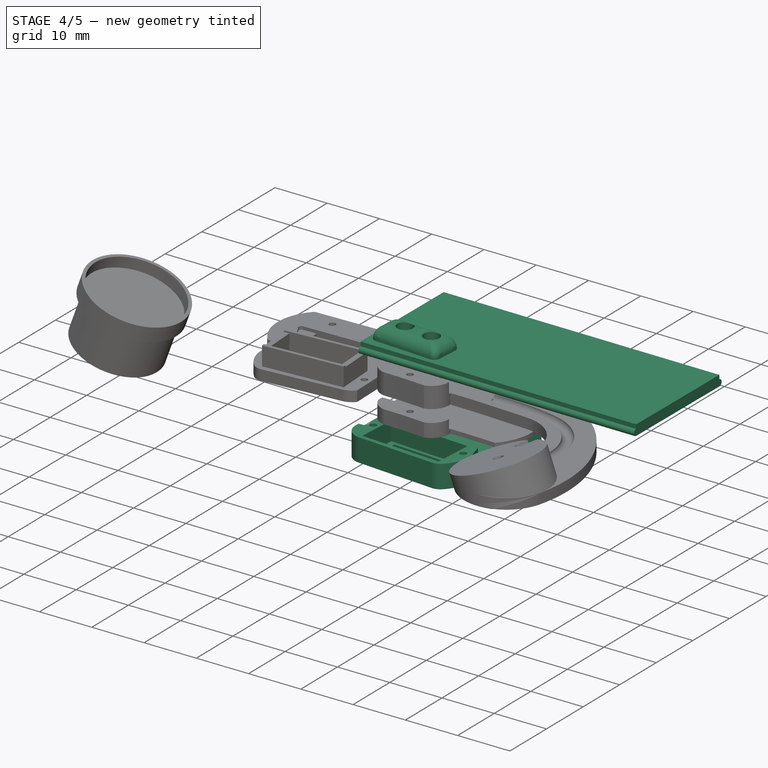
[diagram: stage 4 of 5 — iso view after this stage's code; geometry added in this stage tinted green]
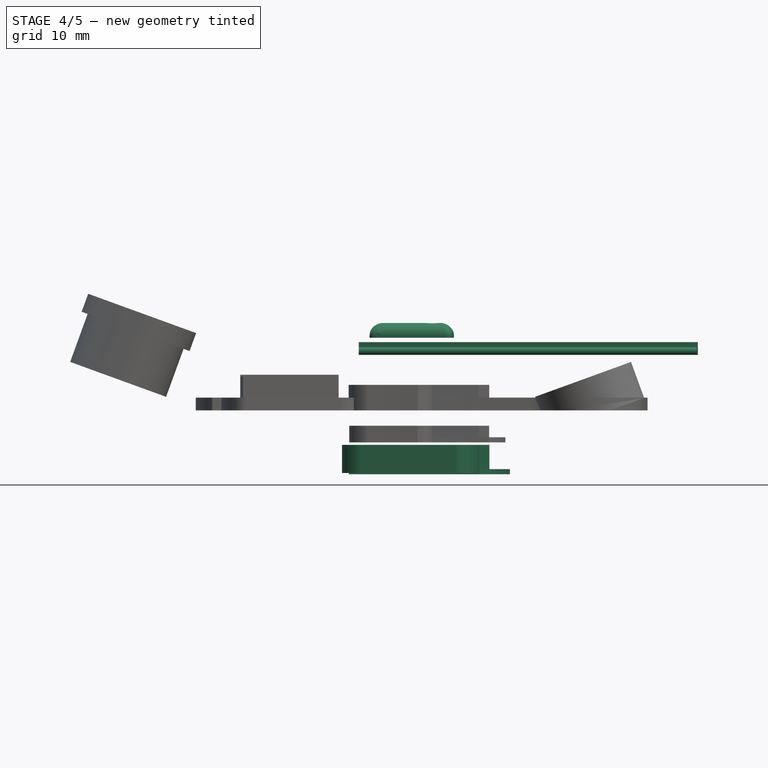
[diagram: stage 4 of 5 — front view after this stage's code; geometry added in this stage tinted green]
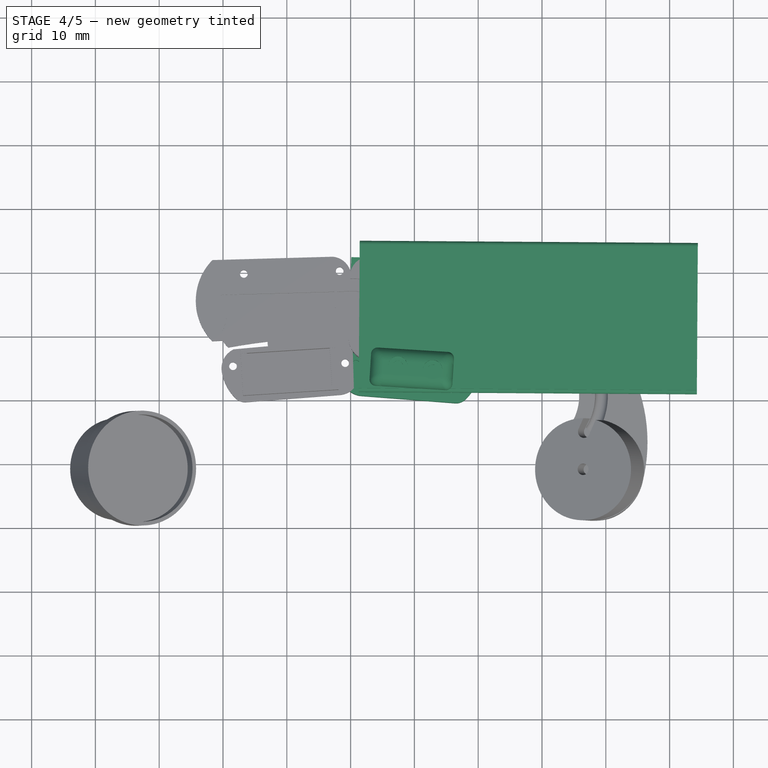
[diagram: stage 4 of 5 — top view after this stage's code; geometry added in this stage tinted green]
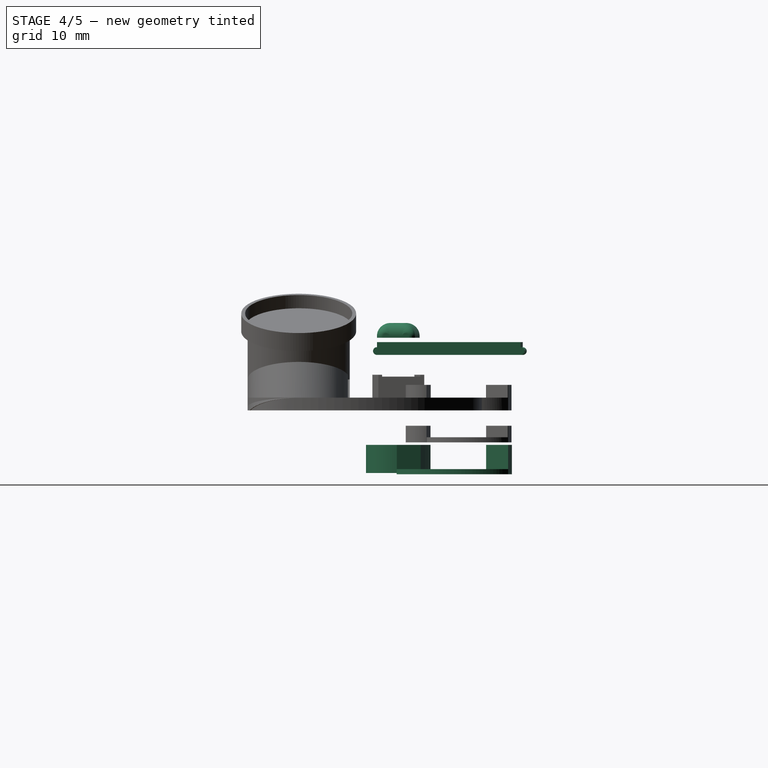
[diagram: stage 4 of 5 — right view after this stage's code; geometry added in this stage tinted green]
FEATURE [Sketcher::SketchObject] Sketch013
  ExternalGeometry = -> [Extrude]
  Support = -> Extrude [Face7]
  sketch-geometry (5):
    g0: ArcOfCircle CenterX=4.21583 CenterY=-254.086 CenterZ=0 NormalX=0 NormalY=0 NormalZ=1 Radius=241.047 StartAngle=1.52089 EndAngle=1.59868
    g1: ArcOfCircle CenterX=-2.21103 CenterY=-173.994 CenterZ=0 NormalX=0 NormalY=0 NormalZ=1 Radius=155.663 StartAngle=1.49476 EndAngle=1.57174
    g2: ArcOfCircle CenterX=13.8376 CenterY=36.6652 CenterZ=0 NormalX=0 NormalY=0 NormalZ=1 Radius=55.6064 StartAngle=4.63635 EndAngle=4.75561
    g3: LineSegment StartX=16.2405 StartY=-18.8893 StartZ=0 EndX=16.2405 EndY=-13.3393 EndZ=0
    g4: LineSegment StartX=-2.50349 StartY=-13.1329 StartZ=0 EndX=-2.35854 EndY=-18.3309 EndZ=0
  constraints (10):
    c: Coincident(g0,g-4)
    c: Tangent(g0,g-4)
    c: Coincident(g1,g-5)
    c: Tangent(g1,g-5)
    c: Coincident(g2,g1)
    c: Tangent(g2,g1)
    c: Coincident(g3,g2)
    c: Coincident(g3,g0)
    c: Coincident(g4,g0)
    c: Coincident(g4,g1)
FEATURE [Part::Extrusion] Extrude017
  Base = -> Sketch013
  Dir = (0,0,-1.2)
  Solid = true
FEATURE [Part::Thickness] Thickness004
  Faces = -> Extrude017 [Face4,Face7]
  Intersection = false
  Join = 2
  Mode = 0
  SelfIntersection = false
  Value = 2
FEATURE [Sketcher::SketchObject] Sketch014
  sketch-geometry (5):
    g0: ArcOfCircle CenterX=4.21583 CenterY=-254.086 CenterZ=0 NormalX=0 NormalY=0 NormalZ=1 Radius=243.047 StartAngle=1.51306 EndAngle=1.59868
    g1: LineSegment StartX=-2.55924 StartY=-11.1337 StartZ=0 EndX=-2.30277 EndY=-20.3308 EndZ=0
    g2: ArcOfCircle CenterX=-2.21103 CenterY=-173.994 CenterZ=0 NormalX=0 NormalY=0 NormalZ=1 Radius=153.663 StartAngle=1.49476 EndAngle=1.57139
    g3: ArcOfCircle CenterX=13.8376 CenterY=36.6652 CenterZ=0 NormalX=0 NormalY=0 NormalZ=1 Radius=57.6064 StartAngle=4.63635 EndAngle=4.78889
    g4: LineSegment StartX=18.2405 StartY=-20.7727 StartZ=0 EndX=18.2405 EndY=-11.4442 EndZ=0
  constraints (5):
    c: Coincident(g1,g0)
    c: Coincident(g2,g1)
    c: Coincident(g3,g2)
    c: Coincident(g4,g3)
    c: Coincident(g4,g0)
FEATURE [Part::Extrusion] Extrude018
  Base = -> Sketch014
  Dir = (0,0,-0.2)
  Solid = true
FEATURE [Part::Thickness] Thickness005
  Faces = -> Extrude018 [Face2,Face7,Face5]
  Intersection = false
  Join = 2
  Mode = 0
  SelfIntersection = false
  Value = 2.5
FEATURE [Sketcher::SketchObject] Sketch015
  sketch-geometry (4):
    g0: LineSegment StartX=-9.37911 StartY=-4.27076 StartZ=0 EndX=30.2277 EndY=-4.27076 EndZ=0
    g1: LineSegment StartX=30.2277 StartY=-4.27076 StartZ=0 EndX=30.2277 EndY=-34.97 EndZ=0
    g2: LineSegment StartX=30.2277 StartY=-34.97 StartZ=0 EndX=-9.37911 EndY=-34.97 EndZ=0
    g3: LineSegment StartX=-9.37911 StartY=-34.97 StartZ=0 EndX=-9.37911 EndY=-4.27076 EndZ=0
  constraints (8):
    c: Coincident(g0,g1)
    c: Coincident(g1,g2)
    c: Coincident(g2,g3)
    c: Coincident(g3,g0)
    c: Horizontal(g0)
    c: Horizontal(g2)
    c: Vertical(g1)
    c: Vertical(g3)
FEATURE [Part::Extrusion] Extrude020
  Base = -> Sketch015
  Dir = (0,0,3)
  Placement = pos=(0,0,0.8) rot=(0,0,1;0rad)
  Solid = true
FEATURE [Sketcher::SketchObject] Sketch016
  Placement = pos=(0,0,0) rot=(1,0,0;3.14159rad)
  sketch-geometry (4):
    g0: LineSegment StartX=-2.11406 StartY=27.0979 StartZ=0 EndX=-2.71954 EndY=5.38549 EndZ=0
    g1: LineSegment StartX=-2.71954 StartY=5.38549 StartZ=0 EndX=-1.91985 EndY=5.36319 EndZ=0
    g2: LineSegment StartX=-1.91985 StartY=5.36319 StartZ=0 EndX=-1.31437 EndY=27.0756 EndZ=0
    g3: LineSegment StartX=-1.31437 StartY=27.0756 StartZ=0 EndX=-2.11406 EndY=27.0979 EndZ=0
  constraints (8):
    c: Coincident(g0,g1)
    c: Coincident(g1,g2)
    c: Coincident(g2,g3)
    c: Coincident(g3,g0)
    c: Parallel(g2,g0)
    c: Distance(g2,g0) = 0.8
    c: Parallel(g3,g1)
    c: Perpendicular(g2,g1)
FEATURE [Part::Extrusion] Extrude022
  Base = -> Sketch016
  Dir = (0,0,-6)
  Placement = pos=(0,0,1) rot=(0,0,1;0rad)
  Solid = true
FEATURE [Sketcher::SketchObject] Sketch017
  Placement = pos=(0,0,0) rot=(1,0,0;3.14159rad)
  sketch-geometry (4):
    g0: LineSegment StartX=2.42837 StartY=22.7908 StartZ=0 EndX=16.2405 EndY=22.7908 EndZ=0
    g1: LineSegment StartX=16.2405 StartY=22.7908 StartZ=0 EndX=16.2405 EndY=8.72591 EndZ=0
    g2: LineSegment StartX=16.2405 StartY=8.72591 StartZ=0 EndX=2.42837 EndY=8.72591 EndZ=0
    g3: LineSegment StartX=2.42837 StartY=8.72591 StartZ=0 EndX=2.42837 EndY=22.7908 EndZ=0
  constraints (8):
    c: Coincident(g0,g1)
    c: Coincident(g1,g2)
    c: Coincident(g2,g3)
    c: Coincident(g3,g0)
    c: Horizontal(g0)
    c: Horizontal(g2)
    c: Vertical(g1)
    c: Vertical(g3)
FEATURE [Part::Extrusion] Extrude023
  Base = -> Sketch017
  Dir = (0,0,6)
  Solid = true
FEATURE [Part::MultiCommon] Common001
  Shapes = -> [Extrude023]
FEATURE [Part::Extrusion] Extrude024
  Base = -> Sketch013
  Dir = (0,0,3)
  Solid = true
FEATURE [Part::MultiFuse] Fusion009
  Shapes = -> [Thickness004,Thickness005,Extrude024]
FEATURE [Image::ImagePlane] ImagePlane
  XSize = 100.983
  YSize = 75.737
FEATURE [Part::MultiFuse] Fusion010
  Shapes = -> [Extrude022,Extrude020,Common001]
FEATURE [Part::Cut] Cut002  label="right body"
  Base = -> Fusion009
  Tool = -> Fusion010
FEATURE [Sketcher::SketchObject] Sketch033
  Placement = pos=(54.4609,-0.362367,3) rot=(0.579911,0.576066,0.576066;2.09056rad)
  sketch-geometry (7):
    g0: LineSegment StartX=-28.3682 StartY=6.90496 StartZ=0 EndX=-28.3682 EndY=6.10496 EndZ=0
    g1: ArcOfCircle CenterX=-28.3861 CenterY=5.50523 CenterZ=0 NormalX=0 NormalY=0 NormalZ=1 Radius=0.6 StartAngle=1.54088 EndAngle=4.71237
    g2: LineSegment StartX=-28.3861 StartY=4.90523 StartZ=0 EndX=-5.85023 EndY=4.90523 EndZ=0
    g3: LineSegment [constr] StartX=-17.1182 StartY=9182.26 StartZ=0 EndX=-17.1182 EndY=-5974 EndZ=0
    g4: LineSegment StartX=-5.86819 StartY=6.90496 StartZ=0 EndX=-5.86819 EndY=6.10496 EndZ=0
    g5: ArcOfCircle CenterX=-5.85024 CenterY=5.50523 CenterZ=0 NormalX=0 NormalY=0 NormalZ=1 Radius=0.6 StartAngle=4.7124 EndAngle=7.8839
    g6: LineSegment StartX=-5.86819 StartY=6.90496 StartZ=0 EndX=-28.3682 EndY=6.90496 EndZ=0
  constraints (15):
    c: Vertical(g0)
    c: Coincident(g6,g0)
    c: Coincident(g0,g1)
    c: Coincident(g1,g2)
    c: Coincident(g2,g5)
    c: Coincident(g5,g4)
    c: Coincident(g4,g6)
    c: Radius(g1) = 0.6
    c: DistanceY(g0) = -0.8
    c: Symmetric(g4,g0,g3)
    c: Symmetric(g5,g1,g3)
    c: Symmetric(g2,g1,g3)
    c: Distance(g6) = 22.5
    c: Vertical(g4)
    c: Horizontal(g6)
FEATURE [PartDesign::Pad] Pad
  Length = 53
  Length2 = 100
  Placement = pos=(54.4609,-0.362367,3) rot=(0.579911,0.576066,0.576066;2.09056rad)
  Reversed = true
  Sketch = -> Sketch033
  Type = 0
FEATURE [Sketcher::SketchObject] Sketch034
  ExternalGeometry = -> [Pad]
  Placement = pos=(54.4609,-0.362354,9.90496) rot=(0,-2e-06,-1;1.57745rad)
  Support = -> Pad [Face1]
  sketch-geometry (5):
    g0: LineSegment [constr] StartX=17.1182 StartY=6.45625 StartZ=0 EndX=17.1182 EndY=-23.5572 EndZ=0
    g1: LineSegment [constr] StartX=9.24517 StartY=-8.66896 StartZ=0 EndX=26.0797 EndY=-8.66896 EndZ=0
    g2: ArcOfCircle CenterX=17.1182 CenterY=-4.46349 CenterZ=0 NormalX=0 NormalY=0 NormalZ=1 Radius=4.20548 StartAngle=2.98709 EndAngle=6.43769
    g3: GeomPoint [constr] X=17.1182 Y=-8.66896 Z=0
    g4: LineSegment StartX=12.9628 StartY=-3.81631 StartZ=0 EndX=21.2736 EndY=-3.81631 EndZ=0
  constraints (10):
    c: Parallel(g0,g-3)
    c: Symmetric(g-3,g-4,g0)
    c: Perpendicular(g1,g0)
    c: PointOnObject(g2,g0)
    c: Symmetric(g2,g2,g0)
    c: PointOnObject(g3,g0)
    c: PointOnObject(g3,g2)
    c: PointOnObject(g3,g1)
    c: Coincident(g4,g2)
    c: Coincident(g4,g2)
FEATURE [Part::Extrusion] Extrude038
  Base = -> Sketch027
  Dir = (0,0,-8)
  Solid = true
FEATURE [Part::Extrusion] Extrude051
  Base = -> Sketch012
  Dir = (0,0,4.4)
  Placement = pos=(0,0,-9.4) rot=(0,0,1;0rad)
  Solid = true
FEATURE [Part::MultiFuse] Fusion020  label="back body"
  Shapes = -> [Thickness008,Thickness009,Extrude051]
FEATURE [Part::Extrusion] Extrude056
  Base = -> Sketch011
  Dir = (0,0,-3.8)
  Placement = pos=(0,0,-7.6) rot=(0,0,1;0rad)
  Solid = true
FEATURE [Part::Fillet] Fillet
  Base = -> Extrude056
  Edges = 8 edges: [Edge1 r=1,Edge2 r=1,Edge4 r=2,Edge5 r=1,Edge7 r=2,Edge8 r=1,Edge10 r=2,Edge12 r=2]
  Placement = pos=(0,0,-1.5) rot=(0,0,1;0rad)
FEATURE [Sketcher::SketchObject] Sketch047
  ExternalGeometry = -> [Extrude042]
  Placement = pos=(0,0,-6.2) rot=(0,0,1;0rad)
  Support = -> Extrude042 [Face5]
  sketch-geometry (4):
    g0: LineSegment [constr] StartX=-17.7276 StartY=-26.0714 StartZ=0 EndX=-0.694691 EndY=-24.1712 EndZ=0
    g1: LineSegment [constr] StartX=-10.7217 StartY=-19.8415 StartZ=0 EndX=-9.5277 EndY=-30.5448 EndZ=0
    g2: Circle CenterX=-12.8545 CenterY=-25.5277 CenterZ=0 NormalX=0 NormalY=0 NormalZ=1 Radius=1.5
    g3: Circle CenterX=-7.38837 CenterY=-24.9179 CenterZ=0 NormalX=0 NormalY=0 NormalZ=1 Radius=1.5
  constraints (9):
    c: Parallel(g1,g-4)
    c: Symmetric(g-4,g-3,g1)
    c: Symmetric(g-4,g-4,g0)
    c: PointOnObject(g2,g0)
    c: PointOnObject(g3,g0)
    c: Symmetric(g3,g2,g1)
    c: Radius(g2) = 1.5
    c: Equal(g2,g3)
    c: Distance(g3,g2) = 5.5
FEATURE [Part::Extrusion] Extrude057
  Base = -> Sketch047
  Dir = (0,0,-2)
  Placement = pos=(0,0,-5.3) rot=(0,0,1;0rad)
  Solid = true
FEATURE [Part::MultiFuse] Fusion024
  Shapes = -> [Extrude057,Extrude055]
FEATURE [Part::Cut] Cut017  label="earPad"
  Base = -> Fillet
  Tool = -> Fusion024
FEATURE [Part::Box] Box  label="Cube"
  Height = 10
  Length = 26
  Placement = pos=(-22,-30,-10.6) rot=(0,0,1;0rad)
  Width = 10
FEATURE [Part::Cut] Cut018  label="earPad001"
  Base = -> Cut017
  Placement = pos=(0,0,0) rot=(0,1,0;3.14159rad)
  Tool = -> Box
FEATURE [Part::MultiFuse] Fusion025
  Shapes = -> [Extrude058,Extrude052,Extrude055,Extrude054,Extrude050,Extrude039,Extrude038,Extrude041,Extrude042]
FEATURE [Part::Cut] Cut019  label="backII"
  Base = -> Fusion020
  Tool = -> Fusion025
FEATURE [Part::Mirroring] Part__Mirroring  label="backII (Mirror #5)"
  Base = (0,0,0)
  Normal = (1,0,0)
  Source = -> Cut019
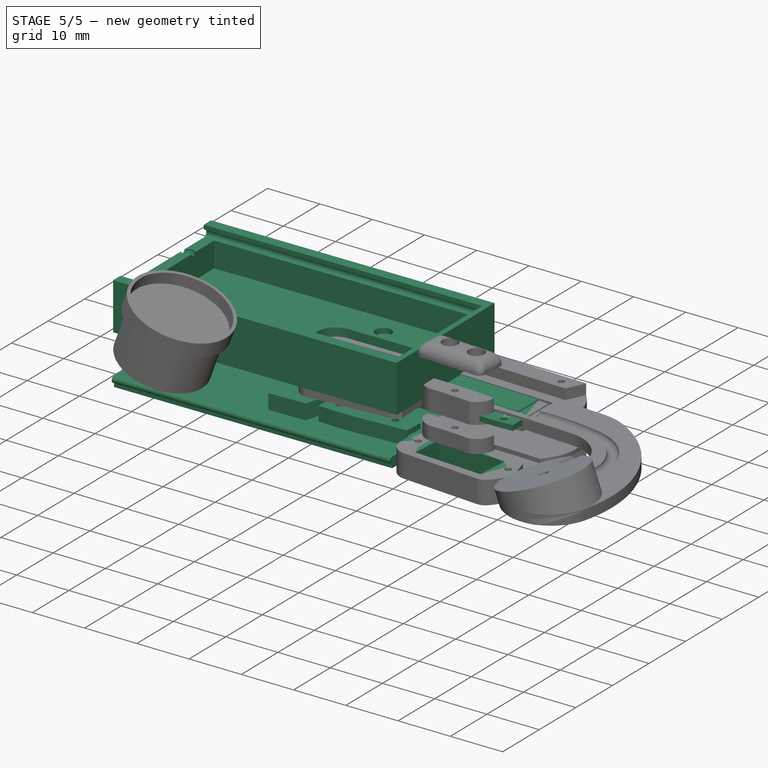
[diagram: stage 5 of 5 — iso view after this stage's code; geometry added in this stage tinted green]
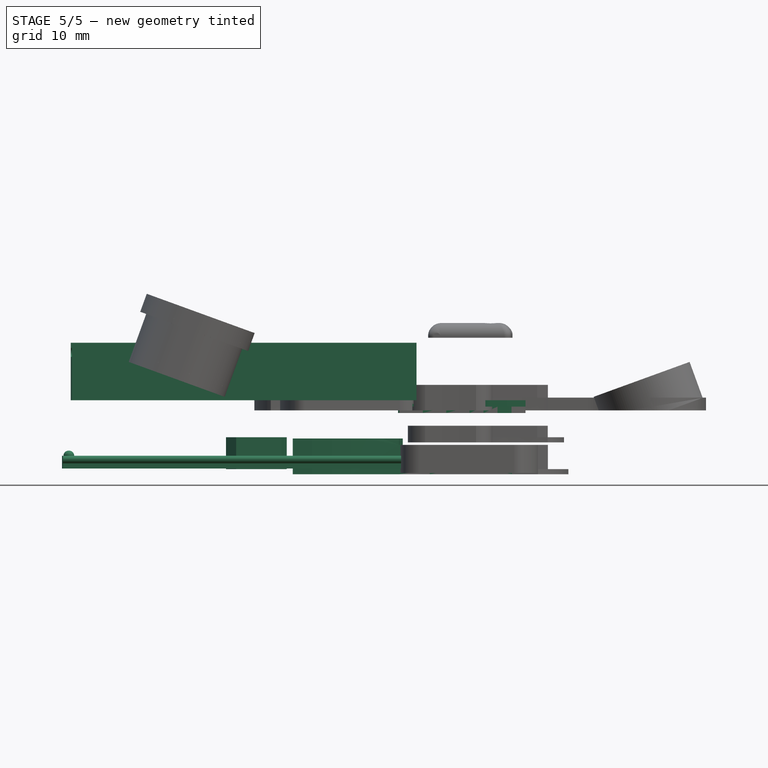
[diagram: stage 5 of 5 — front view after this stage's code; geometry added in this stage tinted green]
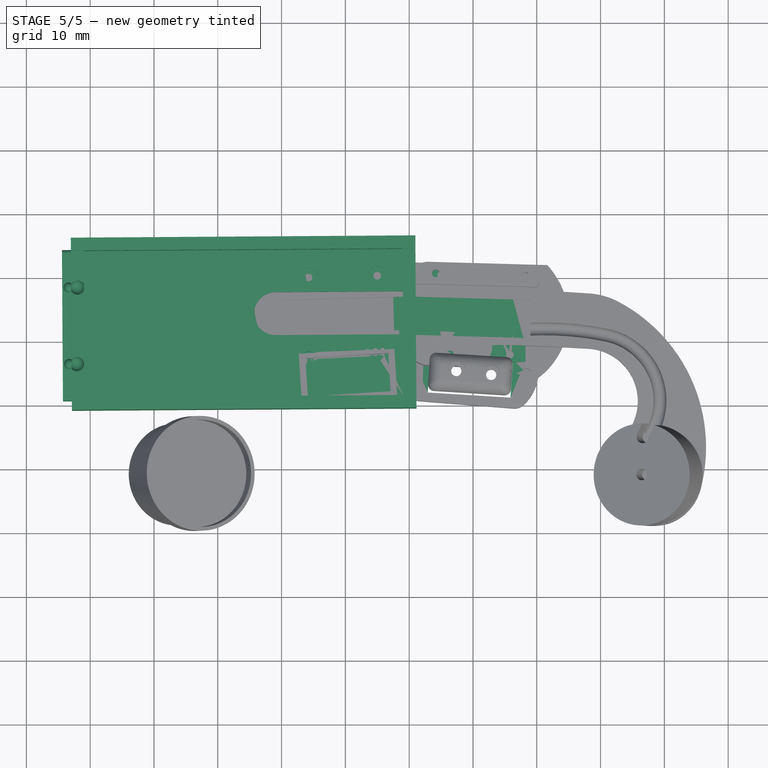
[diagram: stage 5 of 5 — top view after this stage's code; geometry added in this stage tinted green]
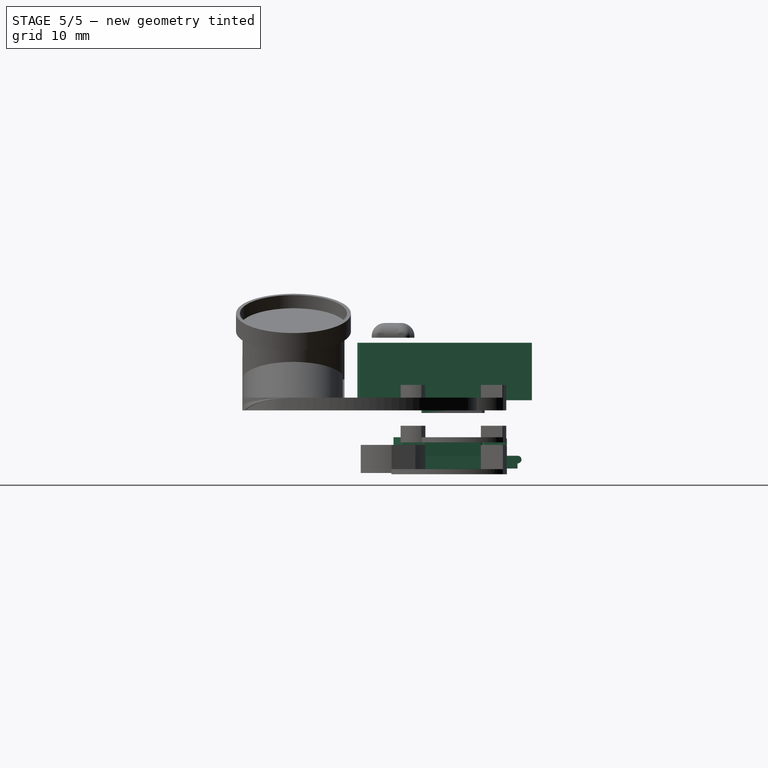
[diagram: stage 5 of 5 — right view after this stage's code; geometry added in this stage tinted green]
FEATURE [Sketcher::SketchObject] Sketch018
  sketch-geometry (4):
    g0: LineSegment StartX=2.42357 StartY=-5.63418 StartZ=0 EndX=2.27054 EndY=-28.6342 EndZ=0
    g1: LineSegment StartX=2.27054 StartY=-28.6342 StartZ=0 EndX=52.2705 EndY=-28.9669 EndZ=0
    g2: LineSegment StartX=52.2705 StartY=-28.9669 StartZ=0 EndX=52.4236 EndY=-5.96687 EndZ=0
    g3: LineSegment StartX=52.4236 StartY=-5.96687 StartZ=0 EndX=2.42357 EndY=-5.63418 EndZ=0
  constraints (9):
    c: Coincident(g0,g1)
    c: Coincident(g1,g2)
    c: Coincident(g2,g3)
    c: Coincident(g3,g0)
    c: Perpendicular(g3,g2)
    c: Parallel(g3,g1)
    c: Parallel(g2,g0)
    c: DistanceX(g3) = -50
    c: DistanceY(g2) = 23
FEATURE [Part::Extrusion] Extrude025
  Base = -> Sketch018
  Dir = (0,0,7)
  Solid = true
FEATURE [Part::Thickness] Thickness006
  Faces = -> Extrude025 [Face6]
  Intersection = false
  Join = 2
  Mode = 0
  Placement = pos=(-1.4,0,2.8) rot=(0,0,1;0rad)
  SelfIntersection = false
  Value = 2
FEATURE [Sketcher::SketchObject] Sketch019
  ExternalGeometry = -> [Thickness006]
  Placement = pos=(53.0609,-0.362367,2.8) rot=(0.579911,0.576066,0.576066;2.09056rad)
  Support = -> Thickness006 [Face9]
  sketch-geometry (7):
    g0: LineSegment StartX=-28.6184 StartY=7 StartZ=0 EndX=-28.6184 EndY=6.2 EndZ=0
    g1: ArcOfCircle CenterX=-28.6184 CenterY=5.5 CenterZ=0 NormalX=0 NormalY=0 NormalZ=1 Radius=0.7 StartAngle=1.5708 EndAngle=4.71238
    g2: LineSegment StartX=-28.6184 StartY=4.8 StartZ=0 EndX=-5.61793 EndY=4.8 EndZ=0
    g3: LineSegment [constr] StartX=-17.1182 StartY=9182.26 StartZ=0 EndX=-17.1182 EndY=-5974 EndZ=0
    g4: LineSegment StartX=-5.61793 StartY=7 StartZ=0 EndX=-5.61793 EndY=6.2 EndZ=0
    g5: ArcOfCircle CenterX=-5.61793 CenterY=5.5 CenterZ=0 NormalX=0 NormalY=0 NormalZ=1 Radius=0.7 StartAngle=4.71239 EndAngle=7.85398
    g6: LineSegment StartX=-5.61793 StartY=7 StartZ=0 EndX=-28.6184 EndY=7 EndZ=0
  constraints (14):
    c: Vertical(g0)
    c: Coincident(g6,g0)
    c: Coincident(g0,g1)
    c: Coincident(g1,g2)
    c: Coincident(g2,g5)
    c: Coincident(g5,g4)
    c: Coincident(g4,g6)
    c: Radius(g1) = 0.7
    c: DistanceY(g0) = -0.8
    c: Symmetric(g4,g0,g3)
    c: Symmetric(g5,g1,g3)
    c: Symmetric(g2,g1,g3)
    c: Symmetric(g4,g0,g3)
    c: PointOnObject(g0,g-3)
FEATURE [PartDesign::Pocket] Pocket
  Length = 53
  Placement = pos=(-1.4,0,2.8) rot=(0,0,1;0rad)
  Sketch = -> Sketch019
  Type = 0
FEATURE [Part::Extrusion] Extrude027
  Base = -> Sketch013
  Dir = (0,0,1)
  Solid = true
FEATURE [Part::Extrusion] Extrude028
  Base = -> Sketch013
  Dir = (0,0,1)
  Solid = true
FEATURE [Sketcher::SketchObject] Sketch027
  Placement = pos=(0,0,-0.2) rot=(1,0,0;3.14159rad)
  Support = -> Cut002 [Face4]
  sketch-geometry (4):
    g0: Circle CenterX=15.7908 CenterY=22.1479 CenterZ=0 NormalX=0 NormalY=0 NormalZ=1 Radius=0.6
    g1: Circle CenterX=5.29476 CenterY=21.7688 CenterZ=0 NormalX=0 NormalY=0 NormalZ=1 Radius=0.6
    g2: Circle CenterX=5.00887 CenterY=9.79727 CenterZ=0 NormalX=0 NormalY=0 NormalZ=1 Radius=0.6
    g3: Circle CenterX=15.7654 CenterY=10.0832 CenterZ=0 NormalX=0 NormalY=0 NormalZ=1 Radius=0.6
  constraints (4):
    c: Radius(g1) = 0.6
    c: Equal(g1,g0)
    c: Equal(g0,g3)
    c: Equal(g3,g2)
FEATURE [Part::Extrusion] Extrude029
  Base = -> Sketch027
  Dir = (0,0,8)
  Solid = true
FEATURE [Part::Extrusion] Extrude030
  Base = -> Sketch027
  Dir = (0,0,8)
  Solid = true
FEATURE [Part::Cut] Cut005  label="right"
  Base = -> Cut002
  Tool = -> Extrude030
FEATURE [Sketcher::SketchObject] Sketch030
  Placement = pos=(0,0,-10) rot=(0,0,1;0rad)
  Support = -> Thickness008 [Face4]
  sketch-geometry (6):
    g0: LineSegment StartX=-28.7068 StartY=-8.66211 StartZ=0 EndX=-21.5501 EndY=-8.66211 EndZ=0
    g1: LineSegment StartX=-21.5501 StartY=-8.66211 StartZ=0 EndX=-20.0656 EndY=-11.6219 EndZ=0
    g2: LineSegment StartX=-20.0656 StartY=-11.6219 StartZ=0 EndX=-19.1871 EndY=-21.8894 EndZ=0
    g3: LineSegment StartX=-27.1277 StartY=-25.3231 StartZ=0 EndX=-28.7068 EndY=-8.66211 EndZ=0
    g4: LineSegment StartX=-19.1871 StartY=-21.8894 StartZ=0 EndX=-20.0718 EndY=-25.1169 EndZ=0
    g5: LineSegment StartX=-20.0718 StartY=-25.1169 StartZ=0 EndX=-27.1277 EndY=-25.3231 EndZ=0
  constraints (6):
    c: Coincident(g0,g1)
    c: Coincident(g1,g2)
    c: Coincident(g3,g0)
    c: Coincident(g2,g4)
    c: Coincident(g4,g5)
    c: Coincident(g5,g3)
FEATURE [Part::Extrusion] Extrude034
  Base = -> Sketch030
  Dir = (0,0,5)
  Solid = true
FEATURE [Sketcher::SketchObject] Sketch031
  Placement = pos=(-1.4,1.313e-09,7.6) rot=(0,0,1;0rad)
  Support = -> Pocket [Face5]
  sketch-geometry (4):
    g0: LineSegment [constr] StartX=40.3883 StartY=-17.8526 StartZ=0 EndX=75.4828 EndY=-17.6147 EndZ=0
    g1: LineSegment [constr] StartX=53.4112 StartY=-7.82309 StartZ=0 EndX=53.2855 EndY=-26.7324 EndZ=0
    g2: ArcOfCircle CenterX=53.385 CenterY=-11.7644 CenterZ=0 NormalX=0 NormalY=0 NormalZ=1 Radius=1.1 StartAngle=4.70574 EndAngle=7.84733
    g3: LineSegment StartX=53.3923 StartY=-10.6644 StartZ=0 EndX=53.3777 EndY=-12.8644 EndZ=0
  constraints (7):
    c: PointOnObject(g2,g1)
    c: PointOnObject(g2,g1)
    c: PointOnObject(g2,g1)
    c: Radius(g2) = 1.1
    c: Coincident(g3,g2)
    c: Coincident(g3,g2)
    c: Distance(g2,g0) = 6
FEATURE [PartDesign::Groove] Groove
  Angle = 360
  Axis = (-0.125784,-18.9093,5.171e-09)
  Base = (52.0112,-7.82309,7.6)
  Placement = pos=(-1.4,0,2.8) rot=(0,0,1;0rad)
  ReferenceAxis = -> Sketch031 [Axis1]
  Reversed = true
  Sketch = -> Sketch031
FEATURE [PartDesign::Mirrored] Mirrored
  MirrorPlane = -> Sketch031 [Axis0]
  Originals = -> [Groove]
  Placement = pos=(-1.4,0,2.8) rot=(0,0,1;0rad)
FEATURE [Sketcher::SketchObject] Sketch032
  ExternalGeometry = -> [Extrude029]
  Placement = pos=(0,0,7.8) rot=(0,0,1;0rad)
  Support = -> Extrude029 [Face9]
  sketch-geometry (4):
    g0: Circle CenterX=15.7654 CenterY=-10.0832 CenterZ=0 NormalX=0 NormalY=0 NormalZ=1 Radius=1.5
    g1: Circle CenterX=5.00887 CenterY=-9.79727 CenterZ=0 NormalX=0 NormalY=0 NormalZ=1 Radius=1.5
    g2: Circle CenterX=5.29476 CenterY=-21.7688 CenterZ=0 NormalX=0 NormalY=0 NormalZ=1 Radius=1.5
    g3: Circle CenterX=15.7908 CenterY=-22.1479 CenterZ=0 NormalX=0 NormalY=0 NormalZ=1 Radius=1.5
  constraints (8):
    c: Radius(g1) = 1.5
    c: Coincident(g1,g-3)
    c: Coincident(g0,g-4)
    c: Coincident(g3,g-6)
    c: Coincident(g2,g-5)
    c: Equal(g2,g1)
    c: Equal(g1,g0)
    c: Equal(g0,g3)
FEATURE [Part::Extrusion] Extrude036
  Base = -> Sketch032
  Dir = (0,0,-6)
  Solid = true
FEATURE [Part::Extrusion] Extrude043
  Base = -> Sketch011
  Dir = (0,0,-1)
  Placement = pos=(0,0,-10) rot=(0,0,1;0rad)
  Solid = true
FEATURE [Sketcher::SketchObject] Sketch038
  ExternalGeometry = -> [Extrude043]
  Placement = pos=(0,0,-11) rot=(1,0,0;3.14159rad)
  Support = -> Extrude043 [Face6]
  sketch-geometry (10):
    g0: LineSegment StartX=-15.8838 StartY=28.7862 StartZ=0 EndX=-12.0912 EndY=28.5494 EndZ=0
    g1: LineSegment StartX=-12.0912 StartY=28.5494 StartZ=0 EndX=-12.1846 EndY=27.0524 EndZ=0
    g2: LineSegment StartX=-12.1846 StartY=27.0524 StartZ=0 EndX=-15.1788 EndY=27.2393 EndZ=0
    g3: LineSegment StartX=-15.1788 StartY=27.2393 StartZ=0 EndX=-15.3657 EndY=24.2451 EndZ=0
    g4: LineSegment StartX=-15.3657 StartY=24.2451 StartZ=0 EndX=-12.3715 EndY=24.0582 EndZ=0
    g5: LineSegment StartX=-12.3715 StartY=24.0582 StartZ=0 EndX=-12.465 EndY=22.5611 EndZ=0
    g6: LineSegment StartX=-12.465 StartY=22.5611 StartZ=0 EndX=-16.2576 EndY=22.7978 EndZ=0
    g7: LineSegment StartX=-16.2576 StartY=22.7978 StartZ=0 EndX=-15.8838 EndY=28.7862 EndZ=0
    g8: LineSegment [constr] StartX=-20.6066 StartY=26.0752 StartZ=0 EndX=1.66058 EndY=24.6852 EndZ=0
    g9: LineSegment [constr] StartX=-9.26737 StartY=30.4487 StartZ=0 EndX=-10.016 EndY=18.4555 EndZ=0
  constraints (22):
    c: Coincident(g0,g1)
    c: Coincident(g1,g2)
    c: Coincident(g2,g3)
    c: Coincident(g3,g4)
    c: Coincident(g4,g5)
    c: Coincident(g5,g6)
    c: Coincident(g6,g7)
    c: Coincident(g7,g0)
    c: Coincident(g0,g-4)
    c: Coincident(g6,g-3)
    c: PointOnObject(g0,g-4)
    c: Parallel(g2,g0)
    c: Parallel(g1,g7)
    c: Distance(g2,g7) = 0.8
    c: Distance(g1,g0) = 1.5
    c: Distance(g1,g3) = 3
    c: Symmetric(g6,g0,g8)
    c: Symmetric(g3,g2,g8)
    c: Symmetric(g1,g4,g8)
    c: Symmetric(g5,g0,g8)
    c: Perpendicular(g9,g8)
    c: Symmetric(g-4,g0,g9)
FEATURE [PartDesign::Pocket] Pocket001
  Length = 5
  Placement = pos=(0,0,-10) rot=(0,0,1;0rad)
  Sketch = -> Sketch038
  Type = 1
FEATURE [PartDesign::Mirrored] Mirrored002
  MirrorPlane = -> Sketch038 [Axis1]
  Originals = -> [Pocket001]
  Placement = pos=(0,0,-10) rot=(0,0,1;0rad)
FEATURE [PartDesign::Pocket] Pocket002
  Length = 1
  Placement = pos=(54.4609,-0.362367,3) rot=(0.579911,0.576066,0.576066;2.09056rad)
  Sketch = -> Sketch034
  Type = 0
FEATURE [Sketcher::SketchObject] Sketch035
  Placement = pos=(54.4609,-0.362358,7.90523) rot=(0.709455,0.70475,0;3.14159rad)
  Support = -> Pocket002 [Face10]
  sketch-geometry (4):
    g0: LineSegment [constr] StartX=-17.1182 StartY=2.90567 StartZ=0 EndX=-17.1182 EndY=-10.4536 EndZ=0
    g1: LineSegment [constr] StartX=-30.4053 StartY=-1 StartZ=0 EndX=-1.22109 EndY=-1 EndZ=0
    g2: ArcOfCircle CenterX=-23.1182 CenterY=-1 CenterZ=0 NormalX=0 NormalY=0 NormalZ=1 Radius=0.8 StartAngle=0 EndAngle=3.14159
    g3: LineSegment StartX=-23.9182 StartY=-1 StartZ=0 EndX=-22.3182 EndY=-1 EndZ=0
FEATURE [PartDesign::Revolution] Revolution
  Angle = 360
  Axis = (0.194197,29.1836,-5.46735e-05)
  Base = (53.2586,-30.7603,7.90528)
  Placement = pos=(54.4609,-0.362367,3) rot=(0.579911,0.576066,0.576066;2.09056rad)
  ReferenceAxis = -> Sketch035 [Axis1]
  Sketch = -> Sketch035
FEATURE [PartDesign::Mirrored] Mirrored003  label="cover"
  MirrorPlane = -> Sketch035 [Axis0]
  Originals = -> [Revolution]
  Placement = pos=(54.4609,-0.362367,3) rot=(0.579911,0.576066,0.576066;2.09056rad)
FEATURE [Part::MultiFuse] Fusion021  label="back pockets"
  Shapes = -> [Extrude050,Extrude038,Extrude039,Extrude041,Extrude052,Extrude042,Mirrored002]
FEATURE [Sketcher::SketchObject] Sketch043
  ExternalGeometry = -> [Mirrored]
  Placement = pos=(-1.4,0,2.8) rot=(0,0,1;0rad)
  Support = -> Mirrored [Face3]
  sketch-geometry (5):
    g0: LineSegment StartX=2.37947 StartY=-12.2623 StartZ=0 EndX=2.33467 EndY=-18.9951 EndZ=0
    g1: LineSegment StartX=2.33467 StartY=-18.9951 StartZ=0 EndX=22.3342 EndY=-19.1281 EndZ=0
    g2: LineSegment StartX=22.379 StartY=-12.3953 StartZ=0 EndX=2.37947 EndY=-12.2623 EndZ=0
    g3: ArcOfCircle CenterX=22.3566 CenterY=-15.7617 CenterZ=0 NormalX=0 NormalY=0 NormalZ=1 Radius=3.36647 StartAngle=4.70574 EndAngle=7.84733
    g4: LineSegment [constr] StartX=22.379 StartY=-12.3953 StartZ=0 EndX=22.3342 EndY=-19.1281 EndZ=0
  constraints (13):
    c: Coincident(g0,g1)
    c: Coincident(g2,g0)
    c: Parallel(g2,g1)
    c: Parallel(g0,g-3)
    c: Parallel(g2,g-4)
    c: PointOnObject(g0,g-3)
    c: Coincident(g3,g2)
    c: Coincident(g3,g1)
    c: Coincident(g4,g2)
    c: Coincident(g4,g1)
    c: Parallel(g4,g0)
    c: PointOnObject(g3,g4)
    c: Distance(g2,g-3) = 20
FEATURE [Part::Extrusion] Extrude053
  Base = -> Sketch043
  Dir = (0,0,-3)
  Solid = true
FEATURE [Part::MultiFuse] Fusion022
  Shapes = -> [Extrude053,Extrude036,Extrude029]
FEATURE [Part::Cut] Cut015  label="box"
  Base = -> Mirrored
  Tool = -> Fusion022
FEATURE [Part::Cut] Cut014  label="back"
  Base = -> Fusion020
  Tool = -> Fusion021
FEATURE [Sketcher::SketchObject] Sketch044
  ExternalGeometry = -> [Cut007]
  Placement = pos=(0.210689,-7.55506,0) rot=(-0.009857,0.707072,0.707072;3.16131rad)
  Support = -> Cut007 [Face20]
  sketch-geometry (6):
    g0: LineSegment StartX=-18.1864 StartY=13.6169 StartZ=0 EndX=-18.03 EndY=19.6365 EndZ=0
    g1: LineSegment StartX=-15.6671 StartY=22.7646 StartZ=0 EndX=-20.406 EndY=20.0518 EndZ=0
    g2: ArcOfCircle CenterX=-13.2019 CenterY=16.1716 CenterZ=0 NormalX=0 NormalY=0 NormalZ=1 Radius=8.18261 StartAngle=2.64754 EndAngle=3.45161
    g3: LineSegment StartX=-15.6671 StartY=22.7646 StartZ=0 EndX=-13.1004 EndY=22.6195 EndZ=0
    g4: LineSegment StartX=-20.9944 StartY=13.6753 StartZ=0 EndX=-18.1864 EndY=13.6169 EndZ=0
    g5: LineSegment StartX=-13.1004 StartY=22.6195 StartZ=0 EndX=-18.03 EndY=19.6365 EndZ=0
FEATURE [Part::Mirroring] Part__Mirroring002  label="back mirror"
  Base = (0,0,0)
  Normal = (0,0,1)
  Placement = pos=(0,0,0) rot=(0,1,0;3.14159rad)
  Source = -> Cut014
FEATURE [Part::Mirroring] Part__Mirroring003  label="box mirror"
  Base = (0,0,0)
  Normal = (0,0,1)
  Placement = pos=(0,0,0) rot=(0,1,0;3.14159rad)
  Source = -> Cut015
FEATURE [Part::Mirroring] Part__Mirroring004  label="cover mirror"
  Base = (0,0,0)
  Normal = (0,0,1)
  Source = -> Mirrored003
FEATURE [Part::Mirroring] Part__Mirroring005  label="cove flip"
  Base = (0,0,0)
  Normal = (1,0,0)
  Source = -> Part__Mirroring004
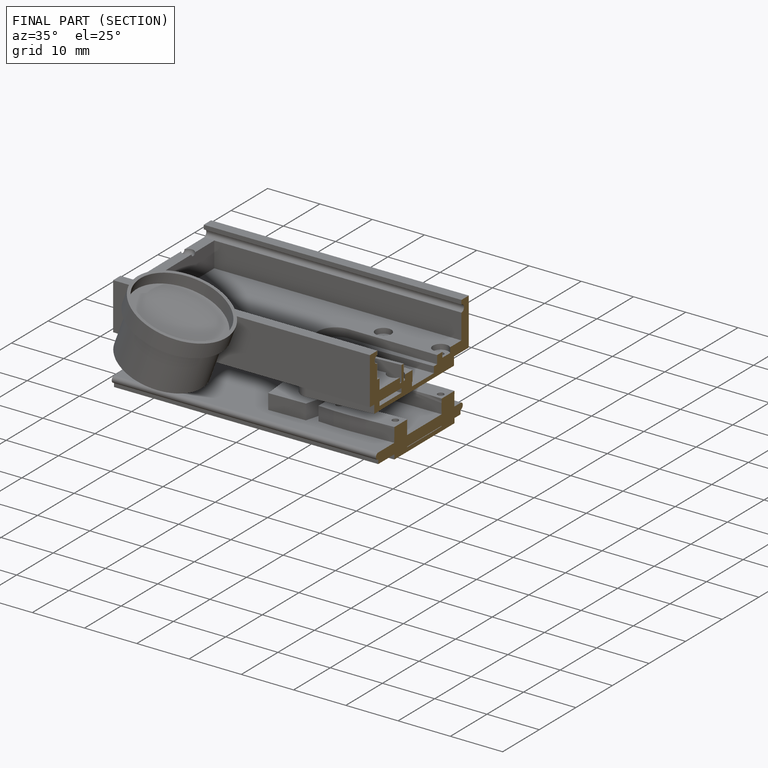
[diagram: finished part — half-section view (interior)]
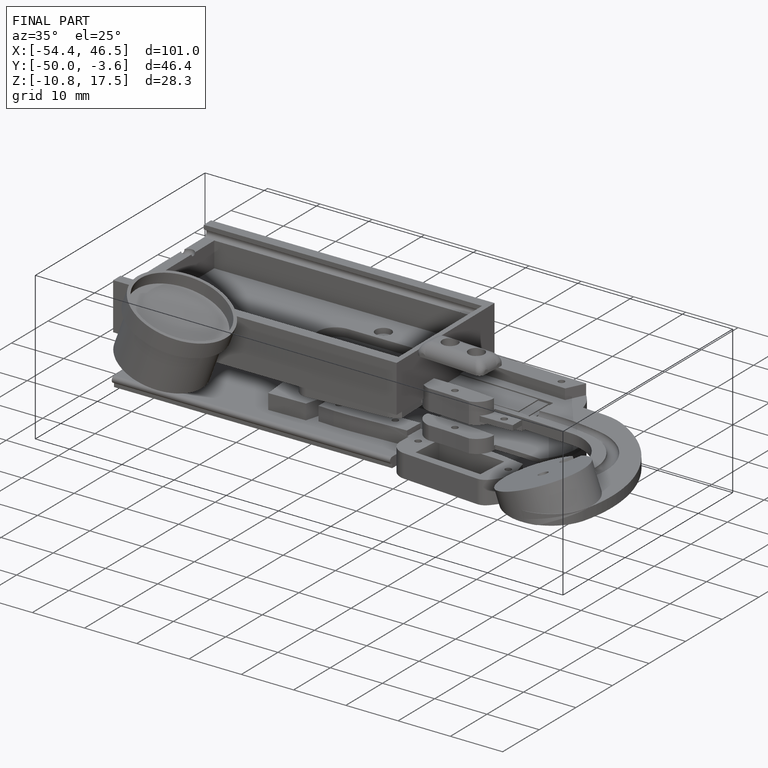
[diagram: finished part — iso view with bounding-box wireframe]
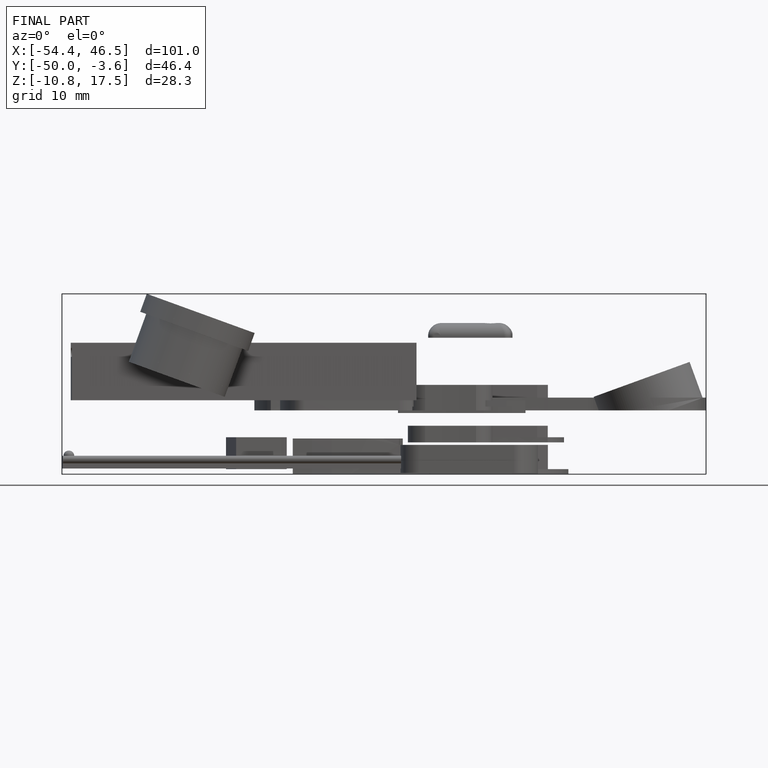
[diagram: finished part — front view with bounding-box wireframe]
